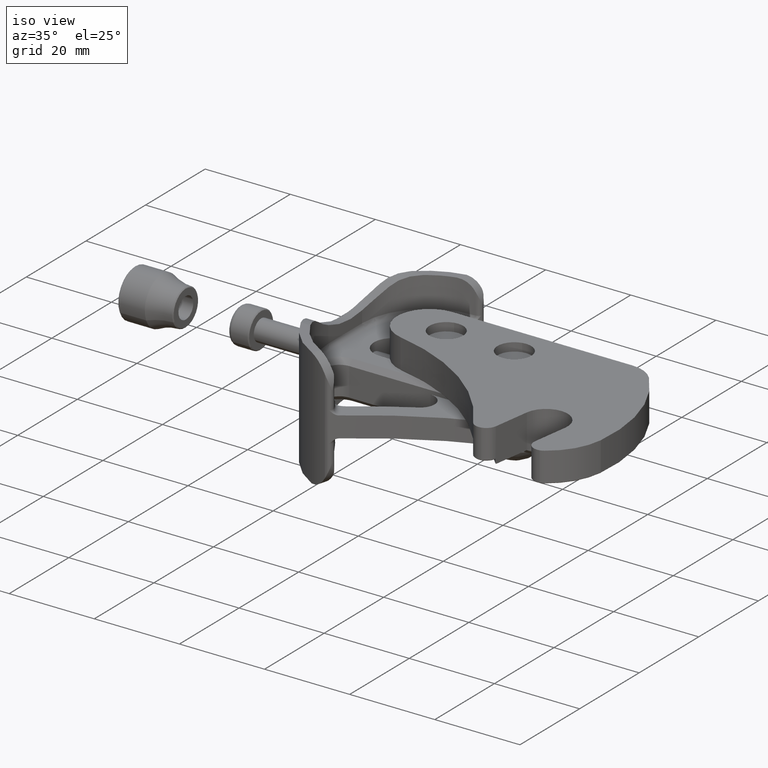
[diagram: clean part render]
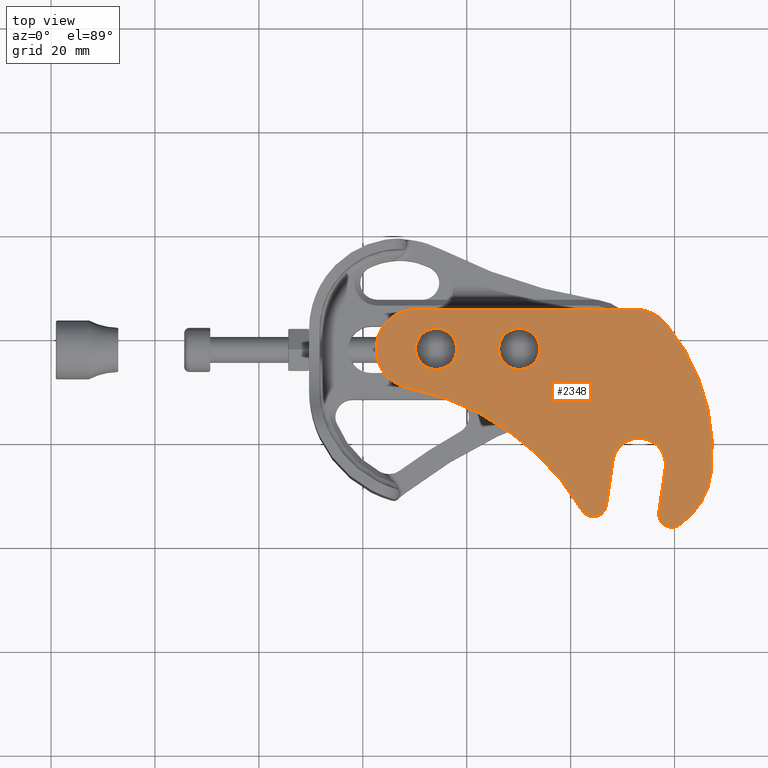
[diagram: tour spotlight — one face highlighted and labeled with its STEP entity id]
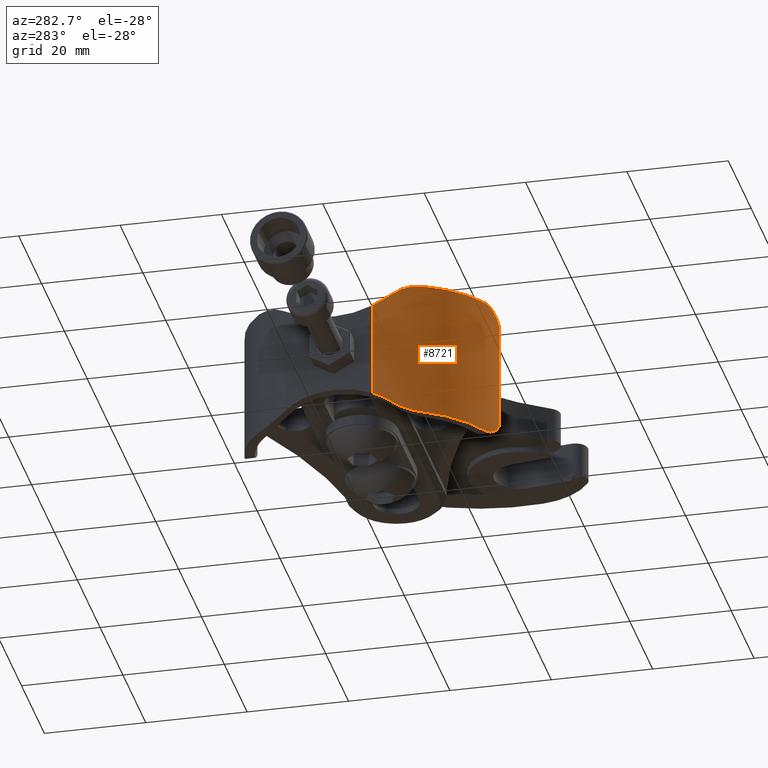
[diagram: tour spotlight — one face highlighted and labeled with its STEP entity id]
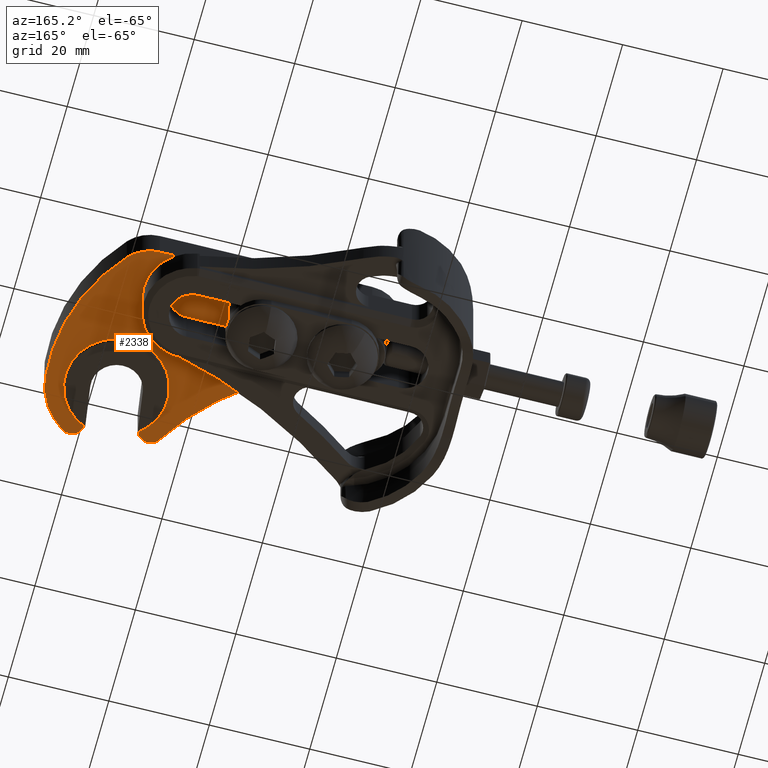
[diagram: tour spotlight — one face highlighted and labeled with its STEP entity id]
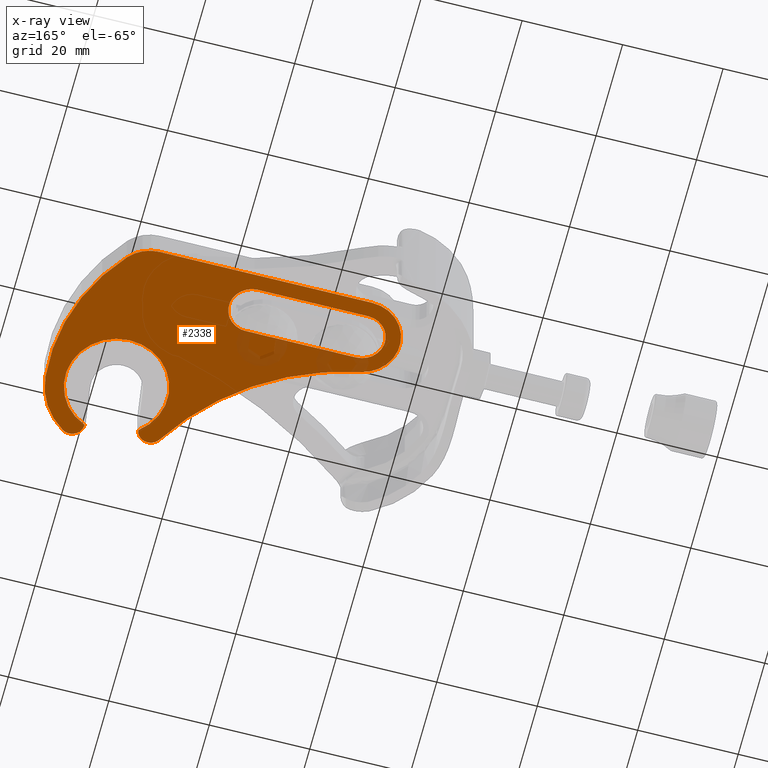
[diagram: x-ray of the same camera — body ghosted, this tour face saturated]
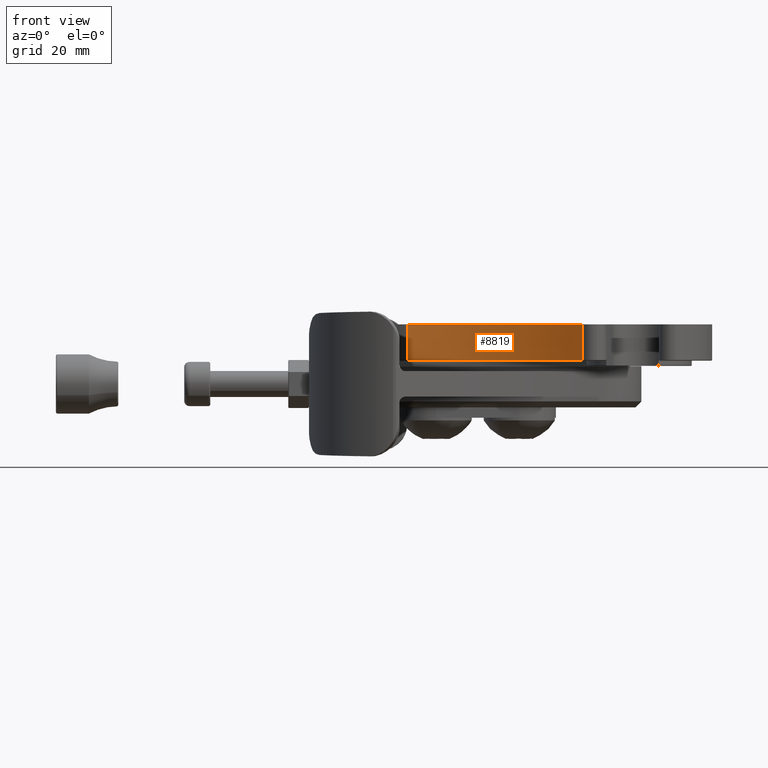
[diagram: tour spotlight — one face highlighted and labeled with its STEP entity id]
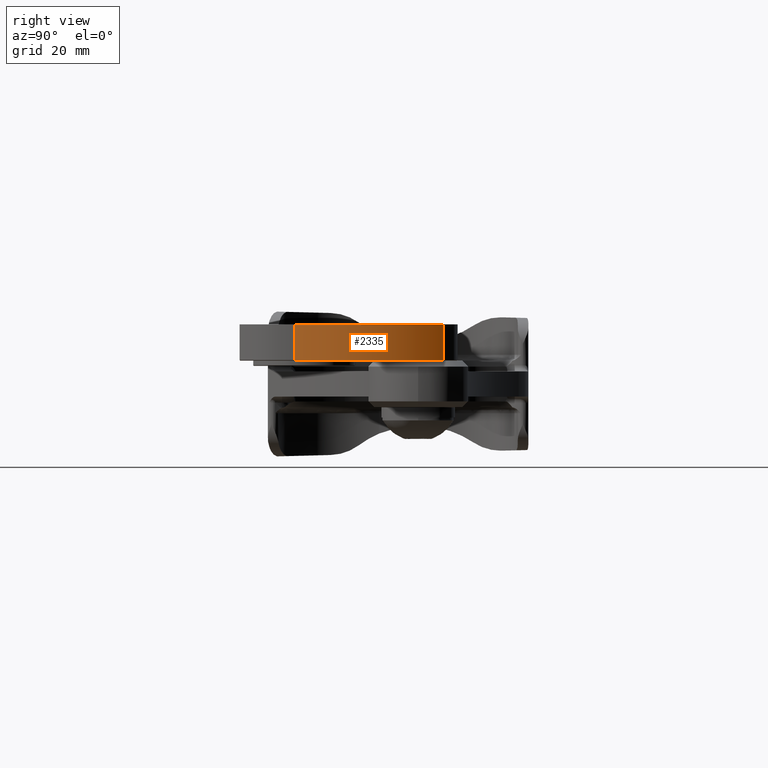
[diagram: tour spotlight — one face highlighted and labeled with its STEP entity id]
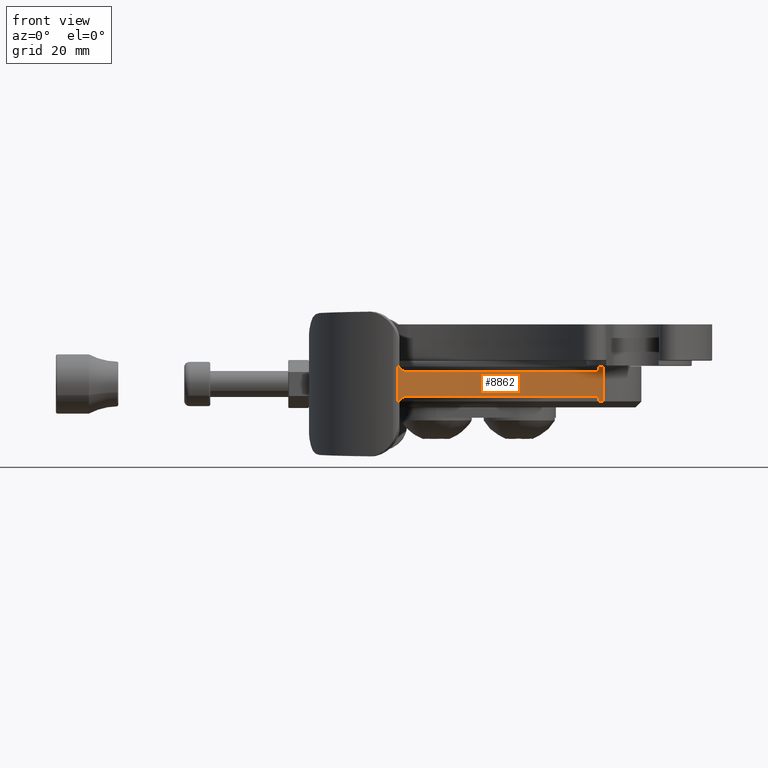
[diagram: tour spotlight — one face highlighted and labeled with its STEP entity id]
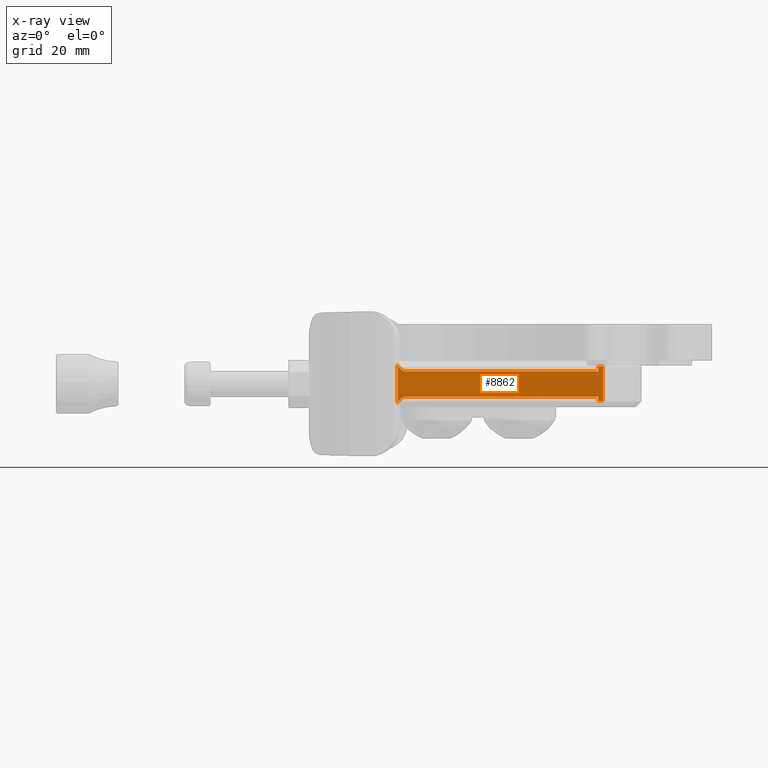
[diagram: x-ray of the same camera — body ghosted, this tour face saturated]
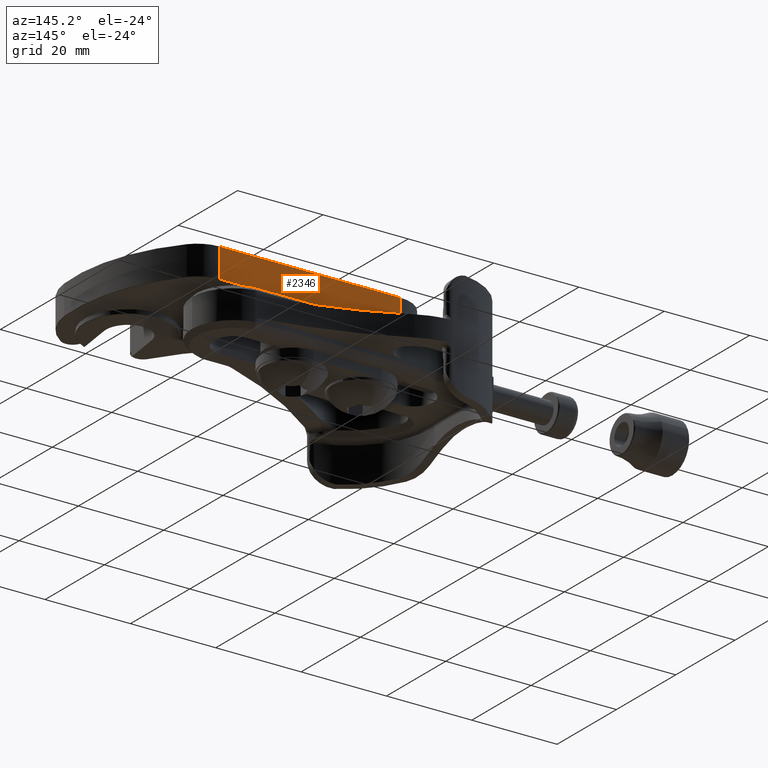
[diagram: tour spotlight — one face highlighted and labeled with its STEP entity id]
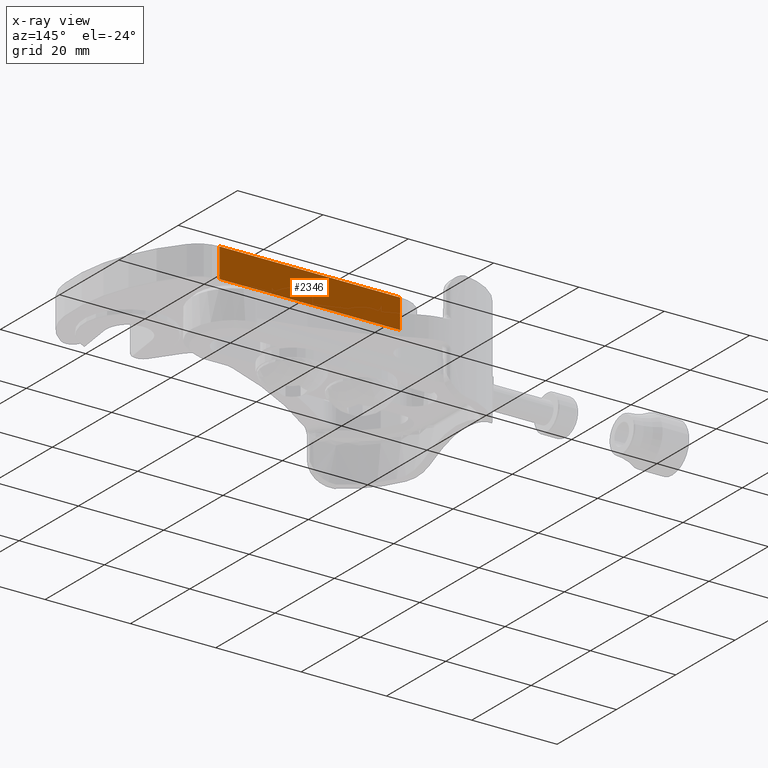
[diagram: x-ray of the same camera — body ghosted, this tour face saturated]
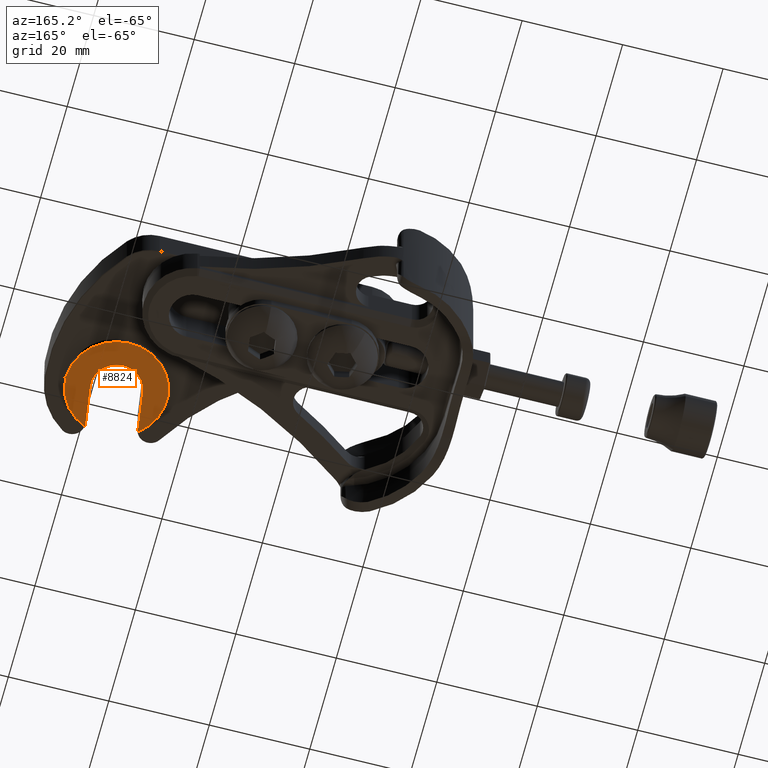
[diagram: tour spotlight — one face highlighted and labeled with its STEP entity id]
A machine part: a face-by-face anatomy tour. The part has 272 B-rep faces; the first image is the clean iso view, then the 8 largest visible faces are spotlighted one at a time (largest first), each with its STEP entity span.

Face 1 — top view, entity #2348. In plain terms, the highlighted planar face has unit normal (0, 0, -1).
Definition (entity closure, byte-faithful):
#176 = DIRECTION ( 'NONE',  ( 0.0000000000000000000, 0.0000000000000000000, 1.000000000000000000 ) ) ;
#178 = CARTESIAN_POINT ( 'NONE',  ( 5.853126836953999900, -2.108239229320000500, 0.0000000000000000000 ) ) ;
#180 = PLANE ( 'NONE',  #7413 ) ;
#181 = DIRECTION ( 'NONE',  ( 1.000000000000000000, 0.0000000000000000000, -0.0000000000000000000 ) ) ;
#260 = ORIENTED_EDGE ( 'NONE', *, *, #2813, .T. ) ;
#262 = ORIENTED_EDGE ( 'NONE', *, *, #2785, .T. ) ;
#265 = ORIENTED_EDGE ( 'NONE', *, *, #2821, .F. ) ;
#266 = ORIENTED_EDGE ( 'NONE', *, *, #2784, .F. ) ;
#268 = ORIENTED_EDGE ( 'NONE', *, *, #2839, .F. ) ;
#281 = ORIENTED_EDGE ( 'NONE', *, *, #2820, .F. ) ;
#500 = EDGE_LOOP ( 'NONE', ( #1183, #1180 ) ) ;
#501 = EDGE_LOOP ( 'NONE', ( #260, #262 ) ) ;
#1180 = ORIENTED_EDGE ( 'NONE', *, *, #2775, .T. ) ;
#1183 = ORIENTED_EDGE ( 'NONE', *, *, #2788, .T. ) ;
#1185 = ORIENTED_EDGE ( 'NONE', *, *, #2798, .F. ) ;
#1191 = ORIENTED_EDGE ( 'NONE', *, *, #2771, .F. ) ;
#1192 = ORIENTED_EDGE ( 'NONE', *, *, #2766, .F. ) ;
#1194 = ORIENTED_EDGE ( 'NONE', *, *, #2773, .F. ) ;
#1197 = ORIENTED_EDGE ( 'NONE', *, *, #2768, .F. ) ;
#1198 = ORIENTED_EDGE ( 'NONE', *, *, #2769, .F. ) ;
#1199 = ORIENTED_EDGE ( 'NONE', *, *, #2841, .F. ) ;
#1200 = ORIENTED_EDGE ( 'NONE', *, *, #2772, .F. ) ;
#1203 = ORIENTED_EDGE ( 'NONE', *, *, #2849, .F. ) ;
#1683 = EDGE_LOOP ( 'NONE', ( #281, #265, #266, #268, #1185, #1203, #1194, #1197, #1198, #1199, #1200, #1192, #1191 ) ) ;
#2348 = ADVANCED_FACE ( 'NONE', ( #8904, #8907, #8915 ), #180, .F. ) ;
#2625 = VERTEX_POINT ( 'NONE', #9363 ) ;
#2628 = VERTEX_POINT ( 'NONE', #9366 ) ;
#2629 = VERTEX_POINT ( 'NONE', #9367 ) ;
#2630 = VERTEX_POINT ( 'NONE', #9368 ) ;
#2631 = VERTEX_POINT ( 'NONE', #9369 ) ;
#2634 = VERTEX_POINT ( 'NONE', #9372 ) ;
#2635 = VERTEX_POINT ( 'NONE', #9373 ) ;
#2636 = VERTEX_POINT ( 'NONE', #9374 ) ;
#2637 = VERTEX_POINT ( 'NONE', #9375 ) ;
#2638 = VERTEX_POINT ( 'NONE', #9376 ) ;
#2639 = VERTEX_POINT ( 'NONE', #9377 ) ;
#2640 = VERTEX_POINT ( 'NONE', #9378 ) ;
#2642 = VERTEX_POINT ( 'NONE', #9380 ) ;
#2643 = VERTEX_POINT ( 'NONE', #9381 ) ;
#2644 = VERTEX_POINT ( 'NONE', #9382 ) ;
#2645 = VERTEX_POINT ( 'NONE', #9383 ) ;
#2649 = VERTEX_POINT ( 'NONE', #9387 ) ;
#2766 = EDGE_CURVE ( 'NONE', #2649, #2645, #9041, .T. ) ;
#2768 = EDGE_CURVE ( 'NONE', #2644, #2639, #9038, .T. ) ;
#2769 = EDGE_CURVE ( 'NONE', #2636, #2644, #9045, .T. ) ;
#2771 = EDGE_CURVE ( 'NONE', #2637, #2649, #9047, .T. ) ;
#2772 = EDGE_CURVE ( 'NONE', #2645, #2634, #9048, .T. ) ;
#2773 = EDGE_CURVE ( 'NONE', #2639, #2625, #9049, .T. ) ;
#2775 = EDGE_CURVE ( 'NONE', #2628, #2629, #9052, .T. ) ;
#2784 = EDGE_CURVE ( 'NONE', #2640, #2635, #9062, .T. ) ;
#2785 = EDGE_CURVE ( 'NONE', #2630, #2631, #9063, .T. ) ;
#2788 = EDGE_CURVE ( 'NONE', #2629, #2628, #9065, .T. ) ;
#2798 = EDGE_CURVE ( 'NONE', #2642, #2643, #9079, .T. ) ;
#2813 = EDGE_CURVE ( 'NONE', #2631, #2630, #9098, .T. ) ;
#2820 = EDGE_CURVE ( 'NONE', #2638, #2637, #9108, .T. ) ;
#2821 = EDGE_CURVE ( 'NONE', #2635, #2638, #9113, .T. ) ;
#2839 = EDGE_CURVE ( 'NONE', #2643, #2640, #9141, .T. ) ;
#2841 = EDGE_CURVE ( 'NONE', #2634, #2636, #9143, .T. ) ;
#2849 = EDGE_CURVE ( 'NONE', #2625, #2642, #9155, .T. ) ;
#4063 = CARTESIAN_POINT ( 'NONE',  ( 4.374338654618999700, -0.9621064012339999300, 0.0000000000000000000 ) ) ;
#4064 = DIRECTION ( 'NONE',  ( -0.9326616729269935300, -0.3607522749103898000, -0.0000000000000000000 ) ) ;
#4074 = CARTESIAN_POINT ( 'NONE',  ( 5.853126836953999900, -2.108239229320000500, 0.0000000000000000000 ) ) ;
#4075 = DIRECTION ( 'NONE',  ( 0.0000000000000000000, 0.0000000000000000000, 1.000000000000000000 ) ) ;
#4076 = DIRECTION ( 'NONE',  ( 1.000000000000000000, 0.0000000000000000000, 0.0000000000000000000 ) ) ;
#4077 = CARTESIAN_POINT ( 'NONE',  ( 3.754984335640991800, -3.050469585540007700, 0.0000000000000000000 ) ) ;
#4078 = DIRECTION ( 'NONE',  ( -0.0000000000000000000, -0.0000000000000000000, -1.000000000000000000 ) ) ;
#4079 = DIRECTION ( 'NONE',  ( 1.000000000000000000, 0.0000000000000000000, 0.0000000000000000000 ) ) ;
#4083 = CARTESIAN_POINT ( 'NONE',  ( 5.775096144362187500, -0.4172433064944154900, 0.0000000000000000000 ) ) ;
#4084 = DIRECTION ( 'NONE',  ( -0.2223993914988268400, 0.9749556454839118900, -0.0000000000000000000 ) ) ;
#4085 = CARTESIAN_POINT ( 'NONE',  ( 4.621306205145999400, -0.6521396501029995700, 0.0000000000000000000 ) ) ;
#4086 = DIRECTION ( 'NONE',  ( -0.0000000000000000000, -0.0000000000000000000, -1.000000000000000000 ) ) ;
#4087 = DIRECTION ( 'NONE',  ( 1.000000000000000000, 0.0000000000000000000, 0.0000000000000000000 ) ) ;
#4088 = CARTESIAN_POINT ( 'NONE',  ( 4.410413882921999700, -1.055372568212000100, 0.0000000000000000000 ) ) ;
#4089 = DIRECTION ( 'NONE',  ( 0.0000000000000000000, 0.0000000000000000000, 1.000000000000000000 ) ) ;
#4090 = DIRECTION ( 'NONE',  ( 1.000000000000000000, 0.0000000000000000000, 0.0000000000000000000 ) ) ;
#4095 = CARTESIAN_POINT ( 'NONE',  ( 5.818432531880000100, -1.956146148624999600, 0.0000000000000000000 ) ) ;
#4096 = DIRECTION ( 'NONE',  ( 0.0000000000000000000, 0.0000000000000000000, 1.000000000000000000 ) ) ;
#4097 = DIRECTION ( 'NONE',  ( 1.000000000000000000, 0.0000000000000000000, 0.0000000000000000000 ) ) ;
#4122 = CARTESIAN_POINT ( 'NONE',  ( 4.200256271273000100, -0.4933411491220000000, 0.0000000000000000000 ) ) ;
#4123 = DIRECTION ( 'NONE',  ( 0.0000000000000000000, 0.0000000000000000000, 1.000000000000000000 ) ) ;
#4124 = DIRECTION ( 'NONE',  ( 1.000000000000000000, 0.0000000000000000000, 0.0000000000000000000 ) ) ;
#4125 = CARTESIAN_POINT ( 'NONE',  ( 5.678320915236000100, -1.341924091970000600, 0.0000000000000000000 ) ) ;
#4126 = DIRECTION ( 'NONE',  ( 0.0000000000000000000, 0.0000000000000000000, 1.000000000000000000 ) ) ;
#4127 = DIRECTION ( 'NONE',  ( 1.000000000000000000, 0.0000000000000000000, 0.0000000000000000000 ) ) ;
#4134 = CARTESIAN_POINT ( 'NONE',  ( 5.818432531880000100, -1.956146148624999600, 0.0000000000000000000 ) ) ;
#4135 = DIRECTION ( 'NONE',  ( 0.0000000000000000000, 0.0000000000000000000, 1.000000000000000000 ) ) ;
#4136 = DIRECTION ( 'NONE',  ( 1.000000000000000000, 0.0000000000000000000, 0.0000000000000000000 ) ) ;
#4159 = CARTESIAN_POINT ( 'NONE',  ( 4.931666700680999300, -1.550012881780005000, 0.0000000000000000000 ) ) ;
#4160 = DIRECTION ( 'NONE',  ( 0.0000000000000000000, 0.0000000000000000000, 1.000000000000000000 ) ) ;
#4161 = DIRECTION ( 'NONE',  ( 1.000000000000000000, 0.0000000000000000000, 0.0000000000000000000 ) ) ;
#4198 = CARTESIAN_POINT ( 'NONE',  ( 5.678320915236000100, -1.341924091970000600, 0.0000000000000000000 ) ) ;
#4199 = DIRECTION ( 'NONE',  ( 0.0000000000000000000, 0.0000000000000000000, 1.000000000000000000 ) ) ;
#4200 = DIRECTION ( 'NONE',  ( 1.000000000000000000, 0.0000000000000000000, 0.0000000000000000000 ) ) ;
#4204 = CARTESIAN_POINT ( 'NONE',  ( 4.549155748539999600, -0.4656073161459999300, 0.0000000000000000000 ) ) ;
#4214 = DIRECTION ( 'NONE',  ( 0.9326616697853414900, 0.3607522830325797800, -0.0000000000000000000 ) ) ;
#4217 = CARTESIAN_POINT ( 'NONE',  ( 4.200256271273000100, -0.4933411491220000000, 0.0000000000000000000 ) ) ;
#4218 = DIRECTION ( 'NONE',  ( 0.0000000000000000000, 0.0000000000000000000, 1.000000000000000000 ) ) ;
#4219 = DIRECTION ( 'NONE',  ( 1.000000000000000000, 0.0000000000000000000, 0.0000000000000000000 ) ) ;
#4263 = CARTESIAN_POINT ( 'NONE',  ( 4.621306205145999400, -0.6521396501029995700, 0.0000000000000000000 ) ) ;
#4264 = DIRECTION ( 'NONE',  ( 0.0000000000000000000, 0.0000000000000000000, 1.000000000000000000 ) ) ;
#4265 = DIRECTION ( 'NONE',  ( 1.000000000000000000, 0.0000000000000000000, 0.0000000000000000000 ) ) ;
#4268 = CARTESIAN_POINT ( 'NONE',  ( 4.410413882921999700, -1.055372568212000100, 0.0000000000000000000 ) ) ;
#4269 = DIRECTION ( 'NONE',  ( 0.0000000000000000000, 0.0000000000000000000, 1.000000000000000000 ) ) ;
#4270 = DIRECTION ( 'NONE',  ( 1.000000000000000000, 0.0000000000000000000, 0.0000000000000000000 ) ) ;
#4289 = CARTESIAN_POINT ( 'NONE',  ( 5.482609450716990900, -0.4839631239440065300, 0.0000000000000000000 ) ) ;
#4290 = DIRECTION ( 'NONE',  ( 0.0000000000000000000, 0.0000000000000000000, 1.000000000000000000 ) ) ;
#4291 = DIRECTION ( 'NONE',  ( 1.000000000000000000, 0.0000000000000000000, 0.0000000000000000000 ) ) ;
#7413 = AXIS2_PLACEMENT_3D ( 'NONE', #178, #176, #181 ) ;
#7482 = AXIS2_PLACEMENT_3D ( 'NONE', #4074, #4075, #4076 ) ;
#7483 = AXIS2_PLACEMENT_3D ( 'NONE', #4077, #4078, #4079 ) ;
#7485 = AXIS2_PLACEMENT_3D ( 'NONE', #4085, #4086, #4087 ) ;
#7486 = AXIS2_PLACEMENT_3D ( 'NONE', #4088, #4089, #4090 ) ;
#7488 = AXIS2_PLACEMENT_3D ( 'NONE', #4095, #4096, #4097 ) ;
#7494 = AXIS2_PLACEMENT_3D ( 'NONE', #4122, #4123, #4124 ) ;
#7495 = AXIS2_PLACEMENT_3D ( 'NONE', #4125, #4126, #4127 ) ;
#7497 = AXIS2_PLACEMENT_3D ( 'NONE', #4134, #4135, #4136 ) ;
#7502 = AXIS2_PLACEMENT_3D ( 'NONE', #4159, #4160, #4161 ) ;
#7510 = AXIS2_PLACEMENT_3D ( 'NONE', #4198, #4199, #4200 ) ;
#7512 = AXIS2_PLACEMENT_3D ( 'NONE', #4217, #4218, #4219 ) ;
#7523 = AXIS2_PLACEMENT_3D ( 'NONE', #4263, #4264, #4265 ) ;
#7524 = AXIS2_PLACEMENT_3D ( 'NONE', #4268, #4269, #4270 ) ;
#7529 = AXIS2_PLACEMENT_3D ( 'NONE', #4289, #4290, #4291 ) ;
#8904 = FACE_BOUND ( 'NONE', #501, .T. ) ;
#8907 = FACE_OUTER_BOUND ( 'NONE', #1683, .T. ) ;
#8915 = FACE_BOUND ( 'NONE', #500, .T. ) ;
#9038 = CIRCLE ( 'NONE', #7482, 0.3000000000000006000 ) ;
#9041 = LINE ( 'NONE', #4063, #9043 ) ;
#9043 = VECTOR ( 'NONE', #4064, 39.37007874015748900 ) ;
#9045 = CIRCLE ( 'NONE', #7483, 1.999999999999847000 ) ;
#9047 = CIRCLE ( 'NONE', #7485, 0.2000000014898751000 ) ;
#9048 = CIRCLE ( 'NONE', #7486, 0.09999999999970443600 ) ;
#9049 = LINE ( 'NONE', #4083, #9051 ) ;
#9051 = VECTOR ( 'NONE', #4084, 39.37007874015748100 ) ;
#9052 = CIRCLE ( 'NONE', #7488, 0.1560000000000001900 ) ;
#9062 = CIRCLE ( 'NONE', #7494, 0.1000000000003497000 ) ;
#9063 = CIRCLE ( 'NONE', #7495, 0.1560000000000001900 ) ;
#9065 = CIRCLE ( 'NONE', #7497, 0.1560000000000001900 ) ;
#9079 = CIRCLE ( 'NONE', #7502, 1.500000000000197600 ) ;
#9098 = CIRCLE ( 'NONE', #7510, 0.1560000000000001900 ) ;
#9108 = LINE ( 'NONE', #4204, #9116 ) ;
#9113 = CIRCLE ( 'NONE', #7512, 0.1000000000003497000 ) ;
#9116 = VECTOR ( 'NONE', #4214, 39.37007874015748900 ) ;
#9141 = CIRCLE ( 'NONE', #7523, 0.5500000119209993400 ) ;
#9143 = CIRCLE ( 'NONE', #7524, 0.09999999999970443600 ) ;
#9155 = CIRCLE ( 'NONE', #7529, 0.3000000000001295500 ) ;
#9363 = CARTESIAN_POINT ( 'NONE',  ( 5.775096144362304800, -0.4172433064943889000, 0.0000000000000000000 ) ) ;
#9366 = CARTESIAN_POINT ( 'NONE',  ( 5.974432531879999800, -1.956146148624999600, 0.0000000000000000000 ) ) ;
#9367 = CARTESIAN_POINT ( 'NONE',  ( 5.662432531879999500, -1.956146148624999600, 0.0000000000000000000 ) ) ;
#9368 = CARTESIAN_POINT ( 'NONE',  ( 5.834320915236000700, -1.341924091970000600, 0.0000000000000000000 ) ) ;
#9369 = CARTESIAN_POINT ( 'NONE',  ( 5.522320915236000400, -1.341924091970000600, 0.0000000000000000000 ) ) ;
#9372 = CARTESIAN_POINT ( 'NONE',  ( 4.310413882922294900, -1.055372568212000100, 0.0000000000000000000 ) ) ;
#9373 = CARTESIAN_POINT ( 'NONE',  ( 4.100256271272650500, -0.4933411491220000000, 0.0000000000000000000 ) ) ;
#9374 = CARTESIAN_POINT ( 'NONE',  ( 4.379202952099031000, -1.150377188084925600, 0.0000000000000000000 ) ) ;
#9375 = CARTESIAN_POINT ( 'NONE',  ( 4.549155748002433200, -0.4656073147562168600, 0.0000000000000000000 ) ) ;
#9376 = CARTESIAN_POINT ( 'NONE',  ( 4.236331499576070100, -0.5866073161006065700, 0.0000000000000000000 ) ) ;
#9377 = CARTESIAN_POINT ( 'NONE',  ( 6.145613530599188600, -2.041519411870415200, 0.0000000000000000000 ) ) ;
#9378 = CARTESIAN_POINT ( 'NONE',  ( 4.106689621779725700, -0.4580525942823264800, 0.0000000000000000000 ) ) ;
#9380 = CARTESIAN_POINT ( 'NONE',  ( 5.620345138226624300, -0.2174506844847689000, 0.0000000000000000000 ) ) ;
#9381 = CARTESIAN_POINT ( 'NONE',  ( 4.441623806845203900, -0.1323182876581942000, 0.0000000000000000000 ) ) ;
#9382 = CARTESIAN_POINT ( 'NONE',  ( 5.579456075913273400, -2.231138841000769100, 0.0000000000000000000 ) ) ;
#9383 = CARTESIAN_POINT ( 'NONE',  ( 4.374338654618893200, -0.9621064012337241500, 0.0000000000000000000 ) ) ;
#9387 = CARTESIAN_POINT ( 'NONE',  ( 4.693456826381020800, -0.8386719235770575500, 0.0000000000000000000 ) ) ;

Face 2 — auxiliary view, entity #8721. In plain terms, the highlighted cylindrical surface (partial cylindrical patch) has radius 22.225 mm, axis along (0, 0, 1).
Definition (entity closure, byte-faithful):
#441 = VERTEX_POINT ( 'NONE', #7768 ) ;
#443 = VERTEX_POINT ( 'NONE', #7770 ) ;
#447 = VERTEX_POINT ( 'NONE', #7774 ) ;
#448 = VERTEX_POINT ( 'NONE', #7775 ) ;
#449 = VERTEX_POINT ( 'NONE', #7776 ) ;
#450 = VERTEX_POINT ( 'NONE', #7777 ) ;
#451 = VERTEX_POINT ( 'NONE', #7778 ) ;
#740 = EDGE_CURVE ( 'NONE', #7094, #7110, #3357, .T. ) ;
#1352 = ORIENTED_EDGE ( 'NONE', *, *, #2717, .T. ) ;
#1353 = ORIENTED_EDGE ( 'NONE', *, *, #740, .T. ) ;
#1354 = ORIENTED_EDGE ( 'NONE', *, *, #7204, .T. ) ;
#1355 = ORIENTED_EDGE ( 'NONE', *, *, #7206, .T. ) ;
#1356 = ORIENTED_EDGE ( 'NONE', *, *, #7208, .T. ) ;
#1357 = ORIENTED_EDGE ( 'NONE', *, *, #7212, .T. ) ;
#1358 = ORIENTED_EDGE ( 'NONE', *, *, #7214, .T. ) ;
#1359 = ORIENTED_EDGE ( 'NONE', *, *, #7216, .T. ) ;
#1360 = ORIENTED_EDGE ( 'NONE', *, *, #7218, .T. ) ;
#1361 = ORIENTED_EDGE ( 'NONE', *, *, #7219, .T. ) ;
#1720 = EDGE_LOOP ( 'NONE', ( #1352, #1353, #1354, #1355, #1356, #1357, #1358, #1359, #1360, #1361 ) ) ;
#2717 = EDGE_CURVE ( 'NONE', #7077, #7094, #9761, .T. ) ;
#3357 = LINE ( 'NONE', #3617, #3360 ) ;
#3360 = VECTOR ( 'NONE', #3629, 39.37007874015748100 ) ;
#3617 = CARTESIAN_POINT ( 'NONE',  ( 0.6362537155065966000, -1.136798795224010000, 0.0000000000000000000 ) ) ;
#3629 = DIRECTION ( 'NONE',  ( 0.0000000000000000000, 0.0000000000000000000, 1.000000000000000000 ) ) ;
#3778 = CARTESIAN_POINT ( 'NONE',  ( 0.4836417697269921900, -1.077819336675210500, -0.5461584874640393900 ) ) ;
#3779 = CARTESIAN_POINT ( 'NONE',  ( 0.4997774130690241800, -1.085655106312276400, -0.5420961621713238400 ) ) ;
#3780 = CARTESIAN_POINT ( 'NONE',  ( 0.5314926688444822100, -1.099941116059593800, -0.5301199470442647900 ) ) ;
#3781 = CARTESIAN_POINT ( 'NONE',  ( 0.5472031957770057100, -1.106430169517023800, -0.5220773072865931800 ) ) ;
#3782 = CARTESIAN_POINT ( 'NONE',  ( 0.5764141098669296500, -1.117627577385220000, -0.5027370647717408500 ) ) ;
#3783 = CARTESIAN_POINT ( 'NONE',  ( 0.5901081676573308700, -1.122428668753243700, -0.4913947090185475900 ) ) ;
#3784 = CARTESIAN_POINT ( 'NONE',  ( 0.6153639551700853500, -1.130697721808195100, -0.4653126870163127300 ) ) ;
#3785 = CARTESIAN_POINT ( 'NONE',  ( 0.6265558373295114800, -1.134048337043996000, -0.4509615653565766100 ) ) ;
#3786 = CARTESIAN_POINT ( 'NONE',  ( 0.6362537155065437500, -1.136798795223994400, -0.4352989336938433200 ) ) ;
#4321 = CARTESIAN_POINT ( 'NONE',  ( 0.4672699629152922100, -1.069197143406813000, -0.5482880333341457700 ) ) ;
#4337 = CARTESIAN_POINT ( 'NONE',  ( 0.6362537155065437500, -1.136798795223994400, -0.4352989336938433200 ) ) ;
#4351 = CARTESIAN_POINT ( 'NONE',  ( 0.6362537155064906800, -1.136798795223979500, 0.4352989336939289100 ) ) ;
#4618 = LINE ( 'NONE', #5184, #4621 ) ;
#4621 = VECTOR ( 'NONE', #5196, 39.37007874015748100 ) ;
#4656 = FACE_OUTER_BOUND ( 'NONE', #1720, .T. ) ;
#4660 = CYLINDRICAL_SURFACE ( 'NONE', #4827, 0.8750000000000000000 ) ;
#4827 = AXIS2_PLACEMENT_3D ( 'NONE', #5358, #5359, #5357 ) ;
#5162 = CARTESIAN_POINT ( 'NONE',  ( 0.6265559049711518800, -1.134048356228141200, 0.4509614561114320100 ) ) ;
#5163 = CARTESIAN_POINT ( 'NONE',  ( 0.6362537155064906800, -1.136798795223979500, 0.4352989336939289100 ) ) ;
#5166 = CARTESIAN_POINT ( 'NONE',  ( 0.2959556401434280100, -0.9789746519239257400, 0.5460010609659816700 ) ) ;
#5167 = CARTESIAN_POINT ( 'NONE',  ( 0.4672699629152288200, -1.069197143406937400, 0.5482880333341625400 ) ) ;
#5168 = CARTESIAN_POINT ( 'NONE',  ( 0.6154228124122828000, -1.130713204164823600, 0.4652182037609174400 ) ) ;
#5169 = CARTESIAN_POINT ( 'NONE',  ( 0.5905019301911225100, -1.122561311448528000, 0.4910211590096512600 ) ) ;
#5170 = CARTESIAN_POINT ( 'NONE',  ( 0.5765451780407718800, -1.117675006351230200, 0.5026358817634593000 ) ) ;
#5171 = CARTESIAN_POINT ( 'NONE',  ( 0.5473454112721689600, -1.106487472060602400, 0.5219974178632326200 ) ) ;
#5172 = CARTESIAN_POINT ( 'NONE',  ( 0.5319971516720974900, -1.100160829047678800, 0.5299022257616129400 ) ) ;
#5173 = CARTESIAN_POINT ( 'NONE',  ( 0.4998892827144149600, -1.085712883650755500, 0.5420806209151624000 ) ) ;
#5174 = CARTESIAN_POINT ( 'NONE',  ( 0.4836444160728029500, -1.077820730370194500, 0.5461581432433400000 ) ) ;
#5175 = CARTESIAN_POINT ( 'NONE',  ( 0.4672699629152288200, -1.069197143406937400, 0.5482880333341625400 ) ) ;
#5178 = CARTESIAN_POINT ( 'NONE',  ( 0.06408284275054489100, -0.6261835319740546300, 0.5370584621770677600 ) ) ;
#5179 = CARTESIAN_POINT ( 'NONE',  ( 0.08113501776582438000, -0.6629719961930964400, 0.5379909813278214200 ) ) ;
#5180 = CARTESIAN_POINT ( 'NONE',  ( 0.1625598510447015500, -0.8386384178042559600, 0.5424437984207797200 ) ) ;
#5181 = CARTESIAN_POINT ( 'NONE',  ( 0.08113501776582438000, -0.6629719961930964400, 0.5379909813278214200 ) ) ;
#5184 = CARTESIAN_POINT ( 'NONE',  ( 0.0000000000000000000, -0.2949999962580001600, 0.0000000000000000000 ) ) ;
#5185 = CARTESIAN_POINT ( 'NONE',  ( 0.05004735475278866700, -0.5892189618499704700, 0.5308161689158823500 ) ) ;
#5186 = CARTESIAN_POINT ( 'NONE',  ( 0.03303583849632486100, -0.5339414506663187100, 0.5121270359494398700 ) ) ;
#5187 = CARTESIAN_POINT ( 'NONE',  ( 0.02816185138242038500, -0.5159271732766191900, 0.5044352057838181700 ) ) ;
#5188 = CARTESIAN_POINT ( 'NONE',  ( 0.01985580293500232400, -0.4812043717857009700, 0.4862595769929298800 ) ) ;
#5189 = CARTESIAN_POINT ( 'NONE',  ( 0.01640422058084178800, -0.4644288127538570000, 0.4757548688015808000 ) ) ;
#5190 = CARTESIAN_POINT ( 'NONE',  ( 0.01353665042812749100, -0.4483163309775243800, 0.4637409315620671900 ) ) ;
#5191 = CARTESIAN_POINT ( 'NONE',  ( 0.01353665042812749100, -0.4483163309775243800, 0.4637409315620671900 ) ) ;
#5192 = CARTESIAN_POINT ( 'NONE',  ( 0.005106483047052093300, -0.4009483814365370500, 0.4284220042329301400 ) ) ;
#5196 = DIRECTION ( 'NONE',  ( -0.0000000000000000000, -0.0000000000000000000, -1.000000000000000000 ) ) ;
#5197 = CARTESIAN_POINT ( 'NONE',  ( -2.348729135988354000E-010, -0.3499205709638362200, 0.3989490081135673700 ) ) ;
#5198 = CARTESIAN_POINT ( 'NONE',  ( 4.685638989388499900E-010, -0.2949999962579905600, 0.3754530456830474400 ) ) ;
#5199 = CARTESIAN_POINT ( 'NONE',  ( 4.685639256358449400E-010, -0.2949999962579907300, -0.3754530456830474900 ) ) ;
#5200 = CARTESIAN_POINT ( 'NONE',  ( -2.348728825108855500E-010, -0.3499205709638366600, -0.3989490081135675900 ) ) ;
#5206 = CARTESIAN_POINT ( 'NONE',  ( 0.01927182401243423400, -0.4805414815196223400, -0.4877689454658900600 ) ) ;
#5207 = CARTESIAN_POINT ( 'NONE',  ( 0.01353665042812844000, -0.4483163309775296500, -0.4637409315620603700 ) ) ;
#5208 = CARTESIAN_POINT ( 'NONE',  ( 0.005106483047052095900, -0.4009483814365367200, -0.4284220042329299800 ) ) ;
#5209 = CARTESIAN_POINT ( 'NONE',  ( 0.01353665042812844000, -0.4483163309775296500, -0.4637409315620603700 ) ) ;
#5212 = CARTESIAN_POINT ( 'NONE',  ( 0.1625598510447013300, -0.8386384178042555200, -0.5424437984207797200 ) ) ;
#5213 = CARTESIAN_POINT ( 'NONE',  ( 0.08113501776582050800, -0.6629719961930981000, -0.5379909813278293000 ) ) ;
#5214 = CARTESIAN_POINT ( 'NONE',  ( 0.02731533464928426200, -0.5153302894742326500, -0.5058178057696766100 ) ) ;
#5215 = CARTESIAN_POINT ( 'NONE',  ( 0.05000789028397404500, -0.5891134938027404700, -0.5307973059699266900 ) ) ;
#5216 = CARTESIAN_POINT ( 'NONE',  ( 0.06408131491158997100, -0.6261802358051684600, -0.5370583786253165800 ) ) ;
#5217 = CARTESIAN_POINT ( 'NONE',  ( 0.08113501776582050800, -0.6629719961930981000, -0.5379909813278293000 ) ) ;
#5219 = CARTESIAN_POINT ( 'NONE',  ( 0.2959556401434273500, -0.9789746519239251900, -0.5460010609659817800 ) ) ;
#5220 = CARTESIAN_POINT ( 'NONE',  ( 0.4672699629152922100, -1.069197143406813000, -0.5482880333341457700 ) ) ;
#5357 = DIRECTION ( 'NONE',  ( 1.000000000000000000, 0.0000000000000000000, 0.0000000000000000000 ) ) ;
#5358 = CARTESIAN_POINT ( 'NONE',  ( 0.8750000000000000000, -0.2949999999999999800, 0.0000000000000000000 ) ) ;
#5359 = DIRECTION ( 'NONE',  ( 0.0000000000000000000, 0.0000000000000000000, 1.000000000000000000 ) ) ;
#7077 = VERTEX_POINT ( 'NONE', #4321 ) ;
#7094 = VERTEX_POINT ( 'NONE', #4337 ) ;
#7110 = VERTEX_POINT ( 'NONE', #4351 ) ;
#7204 = EDGE_CURVE ( 'NONE', #7110, #443, #9815, .T. ) ;
#7206 = EDGE_CURVE ( 'NONE', #443, #447, #9816, .T. ) ;
#7208 = EDGE_CURVE ( 'NONE', #447, #448, #9817, .T. ) ;
#7212 = EDGE_CURVE ( 'NONE', #448, #450, #9818, .T. ) ;
#7214 = EDGE_CURVE ( 'NONE', #450, #441, #4618, .T. ) ;
#7216 = EDGE_CURVE ( 'NONE', #441, #451, #9819, .T. ) ;
#7218 = EDGE_CURVE ( 'NONE', #451, #449, #9820, .T. ) ;
#7219 = EDGE_CURVE ( 'NONE', #449, #7077, #9821, .T. ) ;
#7768 = CARTESIAN_POINT ( 'NONE',  ( 4.685639256358449400E-010, -0.2949999962579907300, -0.3754530456830474900 ) ) ;
#7770 = CARTESIAN_POINT ( 'NONE',  ( 0.4672699629152288200, -1.069197143406937400, 0.5482880333341625400 ) ) ;
#7774 = CARTESIAN_POINT ( 'NONE',  ( 0.08113501776582438000, -0.6629719961930964400, 0.5379909813278214200 ) ) ;
#7775 = CARTESIAN_POINT ( 'NONE',  ( 0.01353665042812749100, -0.4483163309775243800, 0.4637409315620671900 ) ) ;
#7776 = CARTESIAN_POINT ( 'NONE',  ( 0.08113501776582050800, -0.6629719961930981000, -0.5379909813278293000 ) ) ;
#7777 = CARTESIAN_POINT ( 'NONE',  ( 4.685638989388499900E-010, -0.2949999962579905600, 0.3754530456830474400 ) ) ;
#7778 = CARTESIAN_POINT ( 'NONE',  ( 0.01353665042812844000, -0.4483163309775296500, -0.4637409315620603700 ) ) ;
#8721 = ADVANCED_FACE ( 'NONE', ( #4656 ), #4660, .T. ) ;
#9455 = CARTESIAN_POINT ( 'NONE',  ( 0.4672699629152922100, -1.069197143406813000, -0.5482880333341457700 ) ) ;
#9761 = B_SPLINE_CURVE_WITH_KNOTS ( 'NONE', 3,
 ( #9455, #3778, #3779, #3780, #3781, #3782, #3783, #3784, #3785, #3786 ),
 .UNSPECIFIED., .F., .F.,
 ( 4, 2, 2, 2, 4 ),
 ( 2.647769990789107100E-016, 0.001399333654534598800, 0.002798667309068933100, 0.004198000963603267000, 0.005597334618137600800 ),
 .UNSPECIFIED. ) ;
#9815 = B_SPLINE_CURVE_WITH_KNOTS ( 'NONE', 3,
 ( #5163, #5162, #5168, #5169, #5170, #5171, #5172, #5173, #5174, #5175 ),
 .UNSPECIFIED., .F., .F.,
 ( 4, 2, 2, 2, 4 ),
 ( 0.0000000000000000000, 0.001399437075598230700, 0.002798874151196461400, 0.004198311226794692100, 0.005597748302392922800 ),
 .UNSPECIFIED. ) ;
#9816 =( BOUNDED_CURVE ( )  B_SPLINE_CURVE ( 3, ( #5167, #5166, #5180, #5181 ),
 .UNSPECIFIED., .F., .T. ) 
 B_SPLINE_CURVE_WITH_KNOTS ( ( 4, 4 ),
 ( 0.4847387082146169000, 1.136756533847164100 ),
 .UNSPECIFIED. ) 
 CURVE ( )  GEOMETRIC_REPRESENTATION_ITEM ( )  RATIONAL_B_SPLINE_CURVE ( ( 1.000000000000000000, 0.9648853929559138000, 0.9648853929559138000, 1.000000000000000000 ) ) 
 REPRESENTATION_ITEM ( '' )  );
#9817 = B_SPLINE_CURVE_WITH_KNOTS ( 'NONE', 3,
 ( #5179, #5178, #5185, #5186, #5187, #5188, #5189, #5190 ),
 .UNSPECIFIED., .F., .F.,
 ( 4, 2, 2, 4 ),
 ( 8.284212780189022000E-017, 0.003049968602159497300, 0.004574952903239205000, 0.006099937204318912200 ),
 .UNSPECIFIED. ) ;
#9818 = B_SPLINE_CURVE_WITH_KNOTS ( 'NONE', 3,
 ( #5191, #5192, #5197, #5198 ),
 .UNSPECIFIED., .F., .F.,
 ( 4, 4 ),
 ( 6.273634481017143500E-018, 0.004506899886458427500 ),
 .UNSPECIFIED. ) ;
#9819 = B_SPLINE_CURVE_WITH_KNOTS ( 'NONE', 3,
 ( #5199, #5200, #5208, #5209 ),
 .UNSPECIFIED., .F., .F.,
 ( 4, 4 ),
 ( 9.082243204132036500E-013, 0.004506899887366672300 ),
 .UNSPECIFIED. ) ;
#9820 = B_SPLINE_CURVE_WITH_KNOTS ( 'NONE', 3,
 ( #5207, #5206, #5214, #5215, #5216, #5217 ),
 .UNSPECIFIED., .F., .F.,
 ( 4, 2, 4 ),
 ( 2.168404344971008900E-019, 0.003048536530694923900, 0.006097073061389847800 ),
 .UNSPECIFIED. ) ;
#9821 =( BOUNDED_CURVE ( )  B_SPLINE_CURVE ( 3, ( #5213, #5212, #5219, #5220 ),
 .UNSPECIFIED., .F., .F. ) 
 B_SPLINE_CURVE_WITH_KNOTS ( ( 4, 4 ),
 ( 2.004836119742629200, 2.656853945375174500 ),
 .UNSPECIFIED. ) 
 CURVE ( )  GEOMETRIC_REPRESENTATION_ITEM ( )  RATIONAL_B_SPLINE_CURVE ( ( 1.000000000000000000, 0.9648853929559139100, 0.9648853929559139100, 1.000000000000000000 ) ) 
 REPRESENTATION_ITEM ( '' )  );

Face 3 — auxiliary view, entity #2338. An x-ray twin of the same camera follows (body ghosted, this face saturated) — the face is partly hidden behind the body. In plain terms, the highlighted planar face has unit normal (0, 0, -1).
Definition (entity closure, byte-faithful):
#143 = DIRECTION ( 'NONE',  ( 0.0000000000000000000, 0.0000000000000000000, 1.000000000000000000 ) ) ;
#144 = CARTESIAN_POINT ( 'NONE',  ( 5.853126836953999900, -2.108239229320000500, 0.2750000000000000200 ) ) ;
#146 = PLANE ( 'NONE',  #7403 ) ;
#148 = DIRECTION ( 'NONE',  ( 1.000000000000000000, 0.0000000000000000000, -0.0000000000000000000 ) ) ;
#277 = ORIENTED_EDGE ( 'NONE', *, *, #2776, .T. ) ;
#284 = ORIENTED_EDGE ( 'NONE', *, *, #2778, .T. ) ;
#364 = ORIENTED_EDGE ( 'NONE', *, *, #621, .T. ) ;
#365 = ORIENTED_EDGE ( 'NONE', *, *, #622, .T. ) ;
#367 = ORIENTED_EDGE ( 'NONE', *, *, #748, .T. ) ;
#368 = ORIENTED_EDGE ( 'NONE', *, *, #625, .T. ) ;
#369 = ORIENTED_EDGE ( 'NONE', *, *, #2810, .T. ) ;
#370 = ORIENTED_EDGE ( 'NONE', *, *, #624, .T. ) ;
#371 = ORIENTED_EDGE ( 'NONE', *, *, #623, .T. ) ;
#374 = ORIENTED_EDGE ( 'NONE', *, *, #2823, .T. ) ;
#375 = ORIENTED_EDGE ( 'NONE', *, *, #2795, .T. ) ;
#621 = EDGE_CURVE ( 'NONE', #2658, #2659, #2981, .T. ) ;
#622 = EDGE_CURVE ( 'NONE', #2659, #2660, #2980, .T. ) ;
#623 = EDGE_CURVE ( 'NONE', #2660, #2647, #2982, .T. ) ;
#624 = EDGE_CURVE ( 'NONE', #2654, #2633, #2983, .T. ) ;
#625 = EDGE_CURVE ( 'NONE', #2632, #2646, #2977, .T. ) ;
#626 = EDGE_CURVE ( 'NONE', #2646, #2663, #2986, .T. ) ;
#627 = EDGE_CURVE ( 'NONE', #2663, #2654, #2987, .T. ) ;
#748 = EDGE_CURVE ( 'NONE', #2656, #2658, #3361, .T. ) ;
#1136 = EDGE_CURVE ( 'NONE', #2648, #2621, #3418, .T. ) ;
#1146 = ORIENTED_EDGE ( 'NONE', *, *, #2774, .T. ) ;
#1147 = ORIENTED_EDGE ( 'NONE', *, *, #2850, .T. ) ;
#1148 = ORIENTED_EDGE ( 'NONE', *, *, #1136, .T. ) ;
#1211 = ORIENTED_EDGE ( 'NONE', *, *, #626, .T. ) ;
#1220 = ORIENTED_EDGE ( 'NONE', *, *, #627, .T. ) ;
#1687 = EDGE_LOOP ( 'NONE', ( #277, #284, #374, #1146, #1148, #375, #1147, #367, #364, #365, #371 ) ) ;
#1711 = EDGE_LOOP ( 'NONE', ( #370, #369, #368, #1211, #1220 ) ) ;
#2338 = ADVANCED_FACE ( 'NONE', ( #8894, #8898 ), #146, .T. ) ;
#2617 = VERTEX_POINT ( 'NONE', #9355 ) ;
#2620 = VERTEX_POINT ( 'NONE', #9358 ) ;
#2621 = VERTEX_POINT ( 'NONE', #9359 ) ;
#2624 = VERTEX_POINT ( 'NONE', #9362 ) ;
#2632 = VERTEX_POINT ( 'NONE', #9370 ) ;
#2633 = VERTEX_POINT ( 'NONE', #9371 ) ;
#2646 = VERTEX_POINT ( 'NONE', #9384 ) ;
#2647 = VERTEX_POINT ( 'NONE', #9385 ) ;
#2648 = VERTEX_POINT ( 'NONE', #9386 ) ;
#2652 = VERTEX_POINT ( 'NONE', #9390 ) ;
#2654 = VERTEX_POINT ( 'NONE', #9392 ) ;
#2656 = VERTEX_POINT ( 'NONE', #9394 ) ;
#2658 = VERTEX_POINT ( 'NONE', #9396 ) ;
#2659 = VERTEX_POINT ( 'NONE', #9397 ) ;
#2660 = VERTEX_POINT ( 'NONE', #9398 ) ;
#2663 = VERTEX_POINT ( 'NONE', #9401 ) ;
#2774 = EDGE_CURVE ( 'NONE', #2620, #2648, #9050, .T. ) ;
#2776 = EDGE_CURVE ( 'NONE', #2647, #2652, #9044, .T. ) ;
#2778 = EDGE_CURVE ( 'NONE', #2652, #2617, #9053, .T. ) ;
#2795 = EDGE_CURVE ( 'NONE', #2621, #2624, #9077, .T. ) ;
#2810 = EDGE_CURVE ( 'NONE', #2633, #2632, #9095, .T. ) ;
#2823 = EDGE_CURVE ( 'NONE', #2617, #2620, #9115, .T. ) ;
#2850 = EDGE_CURVE ( 'NONE', #2624, #2656, #9156, .T. ) ;
#2885 = AXIS2_PLACEMENT_3D ( 'NONE', #8052, #8053, #8054 ) ;
#2886 = AXIS2_PLACEMENT_3D ( 'NONE', #8056, #8057, #8058 ) ;
#2887 = AXIS2_PLACEMENT_3D ( 'NONE', #8062, #8063, #8064 ) ;
#2888 = AXIS2_PLACEMENT_3D ( 'NONE', #8065, #8066, #8067 ) ;
#2939 = AXIS2_PLACEMENT_3D ( 'NONE', #3670, #3671, #3672 ) ;
#2952 = AXIS2_PLACEMENT_3D ( 'NONE', #8255, #8256, #8257 ) ;
#2977 = CIRCLE ( 'NONE', #2887, 0.1779999999998460600 ) ;
#2978 = VECTOR ( 'NONE', #8049, 39.37007874015748100 ) ;
#2980 = CIRCLE ( 'NONE', #2885, 0.2950000000001311000 ) ;
#2981 = LINE ( 'NONE', #8045, #2978 ) ;
#2982 = CIRCLE ( 'NONE', #2886, 1.495000000000198200 ) ;
#2983 = LINE ( 'NONE', #8050, #2985 ) ;
#2985 = VECTOR ( 'NONE', #8051, 39.37007874015748100 ) ;
#2986 = LINE ( 'NONE', #8059, #2988 ) ;
#2987 = CIRCLE ( 'NONE', #2888, 0.1779999999998023400 ) ;
#2988 = VECTOR ( 'NONE', #8055, 39.37007874015748900 ) ;
#3361 = CIRCLE ( 'NONE', #2939, 0.2950000000000010900 ) ;
#3418 = CIRCLE ( 'NONE', #2952, 0.09499999999970490400 ) ;
#3670 = CARTESIAN_POINT ( 'NONE',  ( 5.853126836953999900, -2.108239229320000500, 0.2750000000000000200 ) ) ;
#3671 = DIRECTION ( 'NONE',  ( 0.0000000000000000000, 0.0000000000000000000, 1.000000000000000000 ) ) ;
#3672 = DIRECTION ( 'NONE',  ( 1.000000000000000000, 0.0000000000000000000, 0.0000000000000000000 ) ) ;
#4091 = CARTESIAN_POINT ( 'NONE',  ( 4.621306205146000300, -0.6521396501030000100, 0.2750000000000000200 ) ) ;
#4092 = DIRECTION ( 'NONE',  ( -0.0000000000000000000, -0.0000000000000000000, -1.000000000000000000 ) ) ;
#4093 = DIRECTION ( 'NONE',  ( 1.000000000000000000, 0.0000000000000000000, 0.0000000000000000000 ) ) ;
#4098 = CARTESIAN_POINT ( 'NONE',  ( 4.621306205145999400, -0.6521396501029995700, 0.2750000000000000200 ) ) ;
#4099 = DIRECTION ( 'NONE',  ( 0.0000000000000000000, 0.0000000000000000000, 1.000000000000000000 ) ) ;
#4100 = DIRECTION ( 'NONE',  ( 1.000000000000000000, 0.0000000000000000000, 0.0000000000000000000 ) ) ;
#4106 = CARTESIAN_POINT ( 'NONE',  ( 4.200256271273000100, -0.4933411491220000000, 0.2750000000000000200 ) ) ;
#4107 = DIRECTION ( 'NONE',  ( 0.0000000000000000000, 0.0000000000000000000, 1.000000000000000000 ) ) ;
#4108 = DIRECTION ( 'NONE',  ( 1.000000000000000000, 0.0000000000000000000, 0.0000000000000000000 ) ) ;
#4152 = CARTESIAN_POINT ( 'NONE',  ( 4.410413882921999700, -1.055372568212000100, 0.2750000000000000200 ) ) ;
#4153 = DIRECTION ( 'NONE',  ( 0.0000000000000000000, 0.0000000000000000000, 1.000000000000000000 ) ) ;
#4154 = DIRECTION ( 'NONE',  ( 1.000000000000000000, 0.0000000000000000000, 0.0000000000000000000 ) ) ;
#4190 = CARTESIAN_POINT ( 'NONE',  ( 5.660528963915998800, -1.263927640330999600, 0.2750000000000000200 ) ) ;
#4191 = DIRECTION ( 'NONE',  ( -0.0000000000000000000, -0.0000000000000000000, -1.000000000000000000 ) ) ;
#4192 = DIRECTION ( 'NONE',  ( 1.000000000000000000, 0.0000000000000000000, 0.0000000000000000000 ) ) ;
#4222 = CARTESIAN_POINT ( 'NONE',  ( 4.200256271273000100, -0.4933411491220000000, 0.2750000000000000200 ) ) ;
#4223 = DIRECTION ( 'NONE',  ( 0.0000000000000000000, 0.0000000000000000000, 1.000000000000000000 ) ) ;
#4224 = DIRECTION ( 'NONE',  ( 1.000000000000000000, 0.0000000000000000000, 0.0000000000000000000 ) ) ;
#4294 = CARTESIAN_POINT ( 'NONE',  ( 3.754984335640991800, -3.050469585540007700, 0.2750000000000000200 ) ) ;
#4295 = DIRECTION ( 'NONE',  ( -0.0000000000000000000, -0.0000000000000000000, -1.000000000000000000 ) ) ;
#4296 = DIRECTION ( 'NONE',  ( 1.000000000000000000, 5.450070810303186500E-015, 0.0000000000000000000 ) ) ;
#7403 = AXIS2_PLACEMENT_3D ( 'NONE', #144, #143, #148 ) ;
#7487 = AXIS2_PLACEMENT_3D ( 'NONE', #4091, #4092, #4093 ) ;
#7489 = AXIS2_PLACEMENT_3D ( 'NONE', #4098, #4099, #4100 ) ;
#7491 = AXIS2_PLACEMENT_3D ( 'NONE', #4106, #4107, #4108 ) ;
#7500 = AXIS2_PLACEMENT_3D ( 'NONE', #4152, #4153, #4154 ) ;
#7508 = AXIS2_PLACEMENT_3D ( 'NONE', #4190, #4191, #4192 ) ;
#7513 = AXIS2_PLACEMENT_3D ( 'NONE', #4222, #4223, #4224 ) ;
#7530 = AXIS2_PLACEMENT_3D ( 'NONE', #4294, #4295, #4296 ) ;
#8045 = CARTESIAN_POINT ( 'NONE',  ( 5.770221366134767200, -0.4183553034519098500, 0.2750000000000000200 ) ) ;
#8049 = DIRECTION ( 'NONE',  ( -0.2223993914988268400, 0.9749556454839118900, 0.0000000000000000000 ) ) ;
#8050 = CARTESIAN_POINT ( 'NONE',  ( 5.679584732057953100, -2.147826321006796000, 0.2750000000000000200 ) ) ;
#8051 = DIRECTION ( 'NONE',  ( -0.2223993914989598500, 0.9749556454838815800, 0.0000000000000000000 ) ) ;
#8052 = CARTESIAN_POINT ( 'NONE',  ( 5.482609450716990900, -0.4839631239440065300, 0.2750000000000000200 ) ) ;
#8053 = DIRECTION ( 'NONE',  ( 0.0000000000000000000, 0.0000000000000000000, 1.000000000000000000 ) ) ;
#8054 = DIRECTION ( 'NONE',  ( 1.000000000000000000, 0.0000000000000000000, 0.0000000000000000000 ) ) ;
#8055 = DIRECTION ( 'NONE',  ( 0.2223993914988608200, -0.9749556454839041200, 0.0000000000000000000 ) ) ;
#8056 = CARTESIAN_POINT ( 'NONE',  ( 4.931666700680999300, -1.550012881780005000, 0.2750000000000000200 ) ) ;
#8057 = DIRECTION ( 'NONE',  ( 0.0000000000000000000, 0.0000000000000000000, 1.000000000000000000 ) ) ;
#8058 = DIRECTION ( 'NONE',  ( 1.000000000000000000, 0.0000000000000000000, 0.0000000000000000000 ) ) ;
#8059 = CARTESIAN_POINT ( 'NONE',  ( 6.026668941849833600, -2.068652137633272000, 0.2750000000000000200 ) ) ;
#8062 = CARTESIAN_POINT ( 'NONE',  ( 5.660528963915998800, -1.263927640330999600, 0.2750000000000000200 ) ) ;
#8063 = DIRECTION ( 'NONE',  ( -0.0000000000000000000, -0.0000000000000000000, -1.000000000000000000 ) ) ;
#8064 = DIRECTION ( 'NONE',  ( 1.000000000000000000, -1.534746063857654900E-015, 0.0000000000000000000 ) ) ;
#8065 = CARTESIAN_POINT ( 'NONE',  ( 5.853126836953999900, -2.108239229320000100, 0.2750000000000000200 ) ) ;
#8066 = DIRECTION ( 'NONE',  ( -0.0000000000000000000, -0.0000000000000000000, -1.000000000000000000 ) ) ;
#8067 = DIRECTION ( 'NONE',  ( 1.000000000000000000, 0.0000000000000000000, 0.0000000000000000000 ) ) ;
#8255 = CARTESIAN_POINT ( 'NONE',  ( 4.410413882921999700, -1.055372568212000100, 0.2750000000000000200 ) ) ;
#8256 = DIRECTION ( 'NONE',  ( 0.0000000000000000000, 0.0000000000000000000, 1.000000000000000000 ) ) ;
#8257 = DIRECTION ( 'NONE',  ( 1.000000000000000000, 0.0000000000000000000, 0.0000000000000000000 ) ) ;
#8894 = FACE_OUTER_BOUND ( 'NONE', #1687, .T. ) ;
#8898 = FACE_BOUND ( 'NONE', #1711, .T. ) ;
#9044 = CIRCLE ( 'NONE', #7489, 0.5450000119209998900 ) ;
#9050 = CIRCLE ( 'NONE', #7487, 0.4000000000000000800 ) ;
#9053 = CIRCLE ( 'NONE', #7491, 0.09500000000035070700 ) ;
#9077 = CIRCLE ( 'NONE', #7500, 0.09499999999970490400 ) ;
#9095 = CIRCLE ( 'NONE', #7508, 0.1779999999998460600 ) ;
#9115 = CIRCLE ( 'NONE', #7513, 0.09500000000035070700 ) ;
#9156 = CIRCLE ( 'NONE', #7530, 2.004999999999846700 ) ;
#9355 = CARTESIAN_POINT ( 'NONE',  ( 4.105256271272649500, -0.4933411491220000000, 0.2750000000000000200 ) ) ;
#9358 = CARTESIAN_POINT ( 'NONE',  ( 4.227070282259523600, -0.5844784566029719300, 0.2750000000000000200 ) ) ;
#9359 = CARTESIAN_POINT ( 'NONE',  ( 4.315413882922294800, -1.055372568212000100, 0.2750000000000000200 ) ) ;
#9362 = CARTESIAN_POINT ( 'NONE',  ( 4.380763498640176200, -1.145626957091288000, 0.2750000000000000200 ) ) ;
#9370 = CARTESIAN_POINT ( 'NONE',  ( 5.482528963916153400, -1.263927640330999600, 0.2750000000000000200 ) ) ;
#9371 = CARTESIAN_POINT ( 'NONE',  ( 5.486986859019854300, -1.303514732017753800, 0.2750000000000001300 ) ) ;
#9384 = CARTESIAN_POINT ( 'NONE',  ( 5.834071068812000300, -1.224340548645000100, 0.2750000000000001300 ) ) ;
#9385 = CARTESIAN_POINT ( 'NONE',  ( 4.443257283158050800, -0.1370439363054470100, 0.2750000000000000200 ) ) ;
#9386 = CARTESIAN_POINT ( 'NONE',  ( 4.374922859470351500, -0.9672511335079593300, 0.2750000000000000200 ) ) ;
#9390 = CARTESIAN_POINT ( 'NONE',  ( 4.111367954254044200, -0.4598170220241799000, 0.2750000000000000200 ) ) ;
#9392 = CARTESIAN_POINT ( 'NONE',  ( 5.679584732058000200, -2.147826321006999900, 0.2750000000000001300 ) ) ;
#9394 = CARTESIAN_POINT ( 'NONE',  ( 5.584017255263955100, -2.229090514139421900, 0.2750000000000000200 ) ) ;
#9396 = CARTESIAN_POINT ( 'NONE',  ( 6.140738752371769100, -2.042631408827908900, 0.2750000000000000200 ) ) ;
#9397 = CARTESIAN_POINT ( 'NONE',  ( 5.770221366134767200, -0.4183553034519098500, 0.2750000000000000200 ) ) ;
#9398 = CARTESIAN_POINT ( 'NONE',  ( 5.618049543434663600, -0.2218925584760292300, 0.2750000000000000200 ) ) ;
#9401 = CARTESIAN_POINT ( 'NONE',  ( 6.026668941849994400, -2.068652137633975000, 0.2750000000000000200 ) ) ;

Face 4 — front view, entity #8819. In plain terms, the highlighted cylindrical surface (partial cylindrical patch) has radius 50.8 mm, axis along (0, -0, 1).
Definition (entity closure, byte-faithful):
#513 = EDGE_LOOP ( 'NONE', ( #1675, #1676, #1677, #1672 ) ) ;
#630 = EDGE_CURVE ( 'NONE', #2665, #2644, #2990, .T. ) ;
#650 = EDGE_CURVE ( 'NONE', #2665, #2626, #3018, .T. ) ;
#1672 = ORIENTED_EDGE ( 'NONE', *, *, #2769, .T. ) ;
#1675 = ORIENTED_EDGE ( 'NONE', *, *, #630, .F. ) ;
#1676 = ORIENTED_EDGE ( 'NONE', *, *, #650, .T. ) ;
#1677 = ORIENTED_EDGE ( 'NONE', *, *, #2792, .T. ) ;
#2626 = VERTEX_POINT ( 'NONE', #9364 ) ;
#2636 = VERTEX_POINT ( 'NONE', #9374 ) ;
#2644 = VERTEX_POINT ( 'NONE', #9382 ) ;
#2665 = VERTEX_POINT ( 'NONE', #9403 ) ;
#2769 = EDGE_CURVE ( 'NONE', #2636, #2644, #9045, .T. ) ;
#2792 = EDGE_CURVE ( 'NONE', #2626, #2636, #9073, .T. ) ;
#2896 = AXIS2_PLACEMENT_3D ( 'NONE', #8124, #8125, #8126 ) ;
#2990 = LINE ( 'NONE', #8071, #2994 ) ;
#2994 = VECTOR ( 'NONE', #8068, 39.37007874015748100 ) ;
#3018 = CIRCLE ( 'NONE', #2896, 1.999999999999847000 ) ;
#4077 = CARTESIAN_POINT ( 'NONE',  ( 3.754984335640991800, -3.050469585540007700, 0.0000000000000000000 ) ) ;
#4078 = DIRECTION ( 'NONE',  ( -0.0000000000000000000, -0.0000000000000000000, -1.000000000000000000 ) ) ;
#4079 = DIRECTION ( 'NONE',  ( 1.000000000000000000, 0.0000000000000000000, 0.0000000000000000000 ) ) ;
#4133 = DIRECTION ( 'NONE',  ( -0.0000000000000000000, -0.0000000000000000000, -1.000000000000000000 ) ) ;
#4138 = CARTESIAN_POINT ( 'NONE',  ( 4.379202952099031000, -1.150377188084925600, 0.2750000000000000200 ) ) ;
#4917 = AXIS2_PLACEMENT_3D ( 'NONE', #6176, #6177, #6175 ) ;
#6175 = DIRECTION ( 'NONE',  ( -1.000000000000000000, 0.0000000000000000000, 0.0000000000000000000 ) ) ;
#6176 = CARTESIAN_POINT ( 'NONE',  ( 3.754984335640991800, -3.050469585540007700, 0.2750000000000000200 ) ) ;
#6177 = DIRECTION ( 'NONE',  ( -0.0000000000000000000, -0.0000000000000000000, -1.000000000000000000 ) ) ;
#6221 = FACE_OUTER_BOUND ( 'NONE', #513, .T. ) ;
#6230 = CYLINDRICAL_SURFACE ( 'NONE', #4917, 1.999999999999847200 ) ;
#7483 = AXIS2_PLACEMENT_3D ( 'NONE', #4077, #4078, #4079 ) ;
#8068 = DIRECTION ( 'NONE',  ( -0.0000000000000000000, -0.0000000000000000000, -1.000000000000000000 ) ) ;
#8071 = CARTESIAN_POINT ( 'NONE',  ( 5.579456075913273400, -2.231138841000769100, 0.2750000000000000200 ) ) ;
#8124 = CARTESIAN_POINT ( 'NONE',  ( 3.754984335640991800, -3.050469585540007700, 0.2699999999999999600 ) ) ;
#8125 = DIRECTION ( 'NONE',  ( -0.0000000000000000000, -0.0000000000000000000, 1.000000000000000000 ) ) ;
#8126 = DIRECTION ( 'NONE',  ( 1.000000000000000000, 0.0000000000000000000, 0.0000000000000000000 ) ) ;
#8819 = ADVANCED_FACE ( 'NONE', ( #6221 ), #6230, .F. ) ;
#9045 = CIRCLE ( 'NONE', #7483, 1.999999999999847000 ) ;
#9073 = LINE ( 'NONE', #4138, #9075 ) ;
#9075 = VECTOR ( 'NONE', #4133, 39.37007874015748100 ) ;
#9364 = CARTESIAN_POINT ( 'NONE',  ( 4.379202952099031000, -1.150377188084925600, 0.2699999999999999600 ) ) ;
#9374 = CARTESIAN_POINT ( 'NONE',  ( 4.379202952099031000, -1.150377188084925600, 0.0000000000000000000 ) ) ;
#9382 = CARTESIAN_POINT ( 'NONE',  ( 5.579456075913273400, -2.231138841000769100, 0.0000000000000000000 ) ) ;
#9403 = CARTESIAN_POINT ( 'NONE',  ( 5.579456075913273400, -2.231138841000769100, 0.2699999999999999600 ) ) ;

Face 5 — right view, entity #2335. In plain terms, the highlighted cylindrical surface (partial cylindrical patch) has radius 38.1 mm, axis along (0, -0, 1).
Definition (entity closure, byte-faithful):
#134 = DIRECTION ( 'NONE',  ( -1.000000000000000000, 0.0000000000000000000, 0.0000000000000000000 ) ) ;
#135 = CARTESIAN_POINT ( 'NONE',  ( 4.931666700680999300, -1.550012881780005000, 0.2750000000000000200 ) ) ;
#136 = DIRECTION ( 'NONE',  ( -0.0000000000000000000, -0.0000000000000000000, -1.000000000000000000 ) ) ;
#633 = EDGE_CURVE ( 'NONE', #2664, #2642, #2997, .T. ) ;
#635 = EDGE_CURVE ( 'NONE', #2667, #2643, #3001, .T. ) ;
#636 = EDGE_CURVE ( 'NONE', #2667, #2664, #2999, .T. ) ;
#1170 = ORIENTED_EDGE ( 'NONE', *, *, #2798, .T. ) ;
#1193 = ORIENTED_EDGE ( 'NONE', *, *, #633, .T. ) ;
#1227 = ORIENTED_EDGE ( 'NONE', *, *, #636, .T. ) ;
#1229 = ORIENTED_EDGE ( 'NONE', *, *, #635, .F. ) ;
#1712 = EDGE_LOOP ( 'NONE', ( #1229, #1227, #1193, #1170 ) ) ;
#2335 = ADVANCED_FACE ( 'NONE', ( #8883 ), #8893, .T. ) ;
#2642 = VERTEX_POINT ( 'NONE', #9380 ) ;
#2643 = VERTEX_POINT ( 'NONE', #9381 ) ;
#2664 = VERTEX_POINT ( 'NONE', #9402 ) ;
#2667 = VERTEX_POINT ( 'NONE', #9405 ) ;
#2798 = EDGE_CURVE ( 'NONE', #2642, #2643, #9079, .T. ) ;
#2891 = AXIS2_PLACEMENT_3D ( 'NONE', #8087, #8088, #8089 ) ;
#2997 = LINE ( 'NONE', #8079, #3000 ) ;
#2999 = CIRCLE ( 'NONE', #2891, 1.500000000000197600 ) ;
#3000 = VECTOR ( 'NONE', #8081, 39.37007874015748100 ) ;
#3001 = LINE ( 'NONE', #8080, #3003 ) ;
#3003 = VECTOR ( 'NONE', #8076, 39.37007874015748100 ) ;
#4159 = CARTESIAN_POINT ( 'NONE',  ( 4.931666700680999300, -1.550012881780005000, 0.0000000000000000000 ) ) ;
#4160 = DIRECTION ( 'NONE',  ( 0.0000000000000000000, 0.0000000000000000000, 1.000000000000000000 ) ) ;
#4161 = DIRECTION ( 'NONE',  ( 1.000000000000000000, 0.0000000000000000000, 0.0000000000000000000 ) ) ;
#7400 = AXIS2_PLACEMENT_3D ( 'NONE', #135, #136, #134 ) ;
#7502 = AXIS2_PLACEMENT_3D ( 'NONE', #4159, #4160, #4161 ) ;
#8076 = DIRECTION ( 'NONE',  ( -0.0000000000000000000, -0.0000000000000000000, -1.000000000000000000 ) ) ;
#8079 = CARTESIAN_POINT ( 'NONE',  ( 5.620345138226624300, -0.2174506844847689000, 0.2750000000000000200 ) ) ;
#8080 = CARTESIAN_POINT ( 'NONE',  ( 4.441623806845203900, -0.1323182876581942000, 0.2750000000000000200 ) ) ;
#8081 = DIRECTION ( 'NONE',  ( -0.0000000000000000000, -0.0000000000000000000, -1.000000000000000000 ) ) ;
#8087 = CARTESIAN_POINT ( 'NONE',  ( 4.931666700680999300, -1.550012881780005000, 0.2700000000000005200 ) ) ;
#8088 = DIRECTION ( 'NONE',  ( 0.0000000000000000000, 0.0000000000000000000, -1.000000000000000000 ) ) ;
#8089 = DIRECTION ( 'NONE',  ( 1.000000000000000000, 1.821231995775935700E-015, 0.0000000000000000000 ) ) ;
#8883 = FACE_OUTER_BOUND ( 'NONE', #1712, .T. ) ;
#8893 = CYLINDRICAL_SURFACE ( 'NONE', #7400, 1.500000000000197200 ) ;
#9079 = CIRCLE ( 'NONE', #7502, 1.500000000000197600 ) ;
#9380 = CARTESIAN_POINT ( 'NONE',  ( 5.620345138226624300, -0.2174506844847689000, 0.0000000000000000000 ) ) ;
#9381 = CARTESIAN_POINT ( 'NONE',  ( 4.441623806845203900, -0.1323182876581942000, 0.0000000000000000000 ) ) ;
#9402 = CARTESIAN_POINT ( 'NONE',  ( 5.620345138226624300, -0.2174506844847689000, 0.2699999999999999600 ) ) ;
#9405 = CARTESIAN_POINT ( 'NONE',  ( 4.441623806845203900, -0.1323182876581942000, 0.2700000000000005200 ) ) ;

Face 6 — front view, entity #8862. An x-ray twin of the same camera follows (body ghosted, this face saturated) — the face is partly hidden behind the body. In plain terms, the highlighted cylindrical surface (partial cylindrical patch) has radius 101.6 mm, axis along (0, 0, 1).
Definition (entity closure, byte-faithful):
#423 = B_SPLINE_CURVE_WITH_KNOTS ( 'NONE', 3,
 ( #1017, #1013, #1012, #1018 ),
 .UNSPECIFIED., .F., .F.,
 ( 4, 4 ),
 ( 0.001648642245322432100, 0.002272986687040455200 ),
 .UNSPECIFIED. ) ;
#425 = B_SPLINE_CURVE_WITH_KNOTS ( 'NONE', 3,
 ( #1075, #1064, #1071, #1076 ),
 .UNSPECIFIED., .F., .F.,
 ( 4, 4 ),
 ( 0.0000000000000000000, 0.0006222612148214146000 ),
 .UNSPECIFIED. ) ;
#715 = EDGE_CURVE ( 'NONE', #2696, #2697, #423, .T. ) ;
#729 = EDGE_CURVE ( 'NONE', #1084, #7091, #425, .T. ) ;
#735 = EDGE_CURVE ( 'NONE', #7096, #7097, #3353, .T. ) ;
#764 = EDGE_CURVE ( 'NONE', #7052, #7109, #1920, .T. ) ;
#1012 = CARTESIAN_POINT ( 'NONE',  ( 0.7240944890055223100, -1.088643328415499500, -0.09600000000000000200 ) ) ;
#1013 = CARTESIAN_POINT ( 'NONE',  ( 0.7177070256212049200, -1.093571793374691300, -0.09778186458538031000 ) ) ;
#1017 = CARTESIAN_POINT ( 'NONE',  ( 0.7116706133557970700, -1.098255999999999900, -0.1008295484727672200 ) ) ;
#1018 = CARTESIAN_POINT ( 'NONE',  ( 0.7306784657763196700, -1.083597225067636400, -0.09600000000000000200 ) ) ;
#1064 = CARTESIAN_POINT ( 'NONE',  ( 0.7240944890055223100, -1.088643328415499500, 0.09600000000000000200 ) ) ;
#1071 = CARTESIAN_POINT ( 'NONE',  ( 0.7177070256212050300, -1.093571793374691600, 0.09778186458538029600 ) ) ;
#1075 = CARTESIAN_POINT ( 'NONE',  ( 0.7306784657763196700, -1.083597225067636400, 0.09600000000000000200 ) ) ;
#1076 = CARTESIAN_POINT ( 'NONE',  ( 0.7116706133557970700, -1.098255999999999900, 0.1008295484727672200 ) ) ;
#1084 = VERTEX_POINT ( 'NONE', #8252 ) ;
#1233 = VERTEX_POINT ( 'NONE', #8280 ) ;
#1494 = EDGE_CURVE ( 'NONE', #7307, #7052, #3490, .T. ) ;
#1495 = EDGE_CURVE ( 'NONE', #1233, #7307, #3468, .T. ) ;
#1496 = EDGE_CURVE ( 'NONE', #1084, #1233, #3493, .T. ) ;
#1497 = EDGE_CURVE ( 'NONE', #7091, #7097, #1965, .T. ) ;
#1770 = EDGE_LOOP ( 'NONE', ( #7895, #7896, #8519, #8520, #8521, #8522, #8523, #8524, #8525, #8526, #8527, #8528 ) ) ;
#1920 = B_SPLINE_CURVE_WITH_KNOTS ( 'NONE', 3,
 ( #2066, #2065, #2077, #2078 ),
 .UNSPECIFIED., .F., .F.,
 ( 4, 4 ),
 ( 0.0000000000000000000, 1.000000000000000000 ),
 .UNSPECIFIED. ) ;
#1965 = B_SPLINE_CURVE_WITH_KNOTS ( 'NONE', 3,
 ( #7596, #7597, #7601, #7602, #7603, #7604, #7605, #7606 ),
 .UNSPECIFIED., .F., .F.,
 ( 4, 2, 2, 4 ),
 ( 0.0006222612148214146000, 0.001447212968426684100, 0.001859688845229315100, 0.002272164722031946500 ),
 .UNSPECIFIED. ) ;
#2065 = CARTESIAN_POINT ( 'NONE',  ( 2.227919556313408200, -0.3694500136668430500, 0.04399999999706667000 ) ) ;
#2066 = CARTESIAN_POINT ( 'NONE',  ( 2.227919682755859800, -0.3694505390628665100, 0.1320003366969774700 ) ) ;
#2077 = CARTESIAN_POINT ( 'NONE',  ( 2.227919556313408200, -0.3694500136668430500, -0.04400000000146667100 ) ) ;
#2078 = CARTESIAN_POINT ( 'NONE',  ( 2.227919682755639600, -0.3694505390619570700, -0.1320003367003437800 ) ) ;
#2696 = VERTEX_POINT ( 'NONE', #9434 ) ;
#2697 = VERTEX_POINT ( 'NONE', #9435 ) ;
#2762 = EDGE_CURVE ( 'NONE', #7096, #2696, #9791, .T. ) ;
#2763 = EDGE_CURVE ( 'NONE', #7293, #2697, #9032, .T. ) ;
#2764 = EDGE_CURVE ( 'NONE', #7292, #7293, #9039, .T. ) ;
#2765 = EDGE_CURVE ( 'NONE', #7109, #7292, #9037, .T. ) ;
#3353 = LINE ( 'NONE', #3599, #3355 ) ;
#3355 = VECTOR ( 'NONE', #3605, 39.37007874015748100 ) ;
#3468 = LINE ( 'NONE', #7592, #3494 ) ;
#3490 = CIRCLE ( 'NONE', #7354, 3.999999998998999800 ) ;
#3493 = CIRCLE ( 'NONE', #7355, 3.999999998998999800 ) ;
#3494 = VECTOR ( 'NONE', #7569, 39.37007874015748100 ) ;
#3599 = CARTESIAN_POINT ( 'NONE',  ( 0.6718722959155023500, -1.129544643407239800, 0.0000000000000000000 ) ) ;
#3605 = DIRECTION ( 'NONE',  ( 0.0000000000000000000, 0.0000000000000000000, 1.000000000000000000 ) ) ;
#4051 = CARTESIAN_POINT ( 'NONE',  ( 0.6718722959155023500, -1.129544643407239800, -0.1409999999999999900 ) ) ;
#4052 = CARTESIAN_POINT ( 'NONE',  ( 2.193084760670999800, -0.3779999999999999500, 0.0000000000000000000 ) ) ;
#4053 = CARTESIAN_POINT ( 'NONE',  ( 0.6747386277236239200, -1.127261691848312500, -0.1369911912750458000 ) ) ;
#4056 = DIRECTION ( 'NONE',  ( -0.0000000000000000000, 0.0000000000000000000, 1.000000000000000000 ) ) ;
#4057 = CARTESIAN_POINT ( 'NONE',  ( 0.6776971784876538700, -1.124911830795435100, -0.1330668633339881200 ) ) ;
#4058 = CARTESIAN_POINT ( 'NONE',  ( 0.6836957396235762200, -1.120161704075213200, -0.1253516175148789200 ) ) ;
#4060 = CARTESIAN_POINT ( 'NONE',  ( 0.6965336113620460600, -1.110049615671485400, -0.1110077694628991600 ) ) ;
#4061 = CARTESIAN_POINT ( 'NONE',  ( 0.7036680564478036100, -1.104465918812644700, -0.1048699060020512100 ) ) ;
#4062 = CARTESIAN_POINT ( 'NONE',  ( 0.7116706133557970700, -1.098255999999999900, -0.1008295484727672200 ) ) ;
#4065 = CARTESIAN_POINT ( 'NONE',  ( 3.163914999999999800, -4.258397999999999700, -0.09600000000000000200 ) ) ;
#4066 = DIRECTION ( 'NONE',  ( 0.0000000000000000000, 0.0000000000000000000, 1.000000000000000000 ) ) ;
#4067 = DIRECTION ( 'NONE',  ( 1.000000000000000000, 0.0000000000000000000, 0.0000000000000000000 ) ) ;
#4068 = CARTESIAN_POINT ( 'NONE',  ( 3.163914999999999800, -4.258397999999999700, -0.1320000000000000100 ) ) ;
#4069 = DIRECTION ( 'NONE',  ( 0.0000000000000000000, 0.0000000000000000000, 1.000000000000000000 ) ) ;
#4070 = DIRECTION ( 'NONE',  ( 1.000000000000000000, 0.0000000000000000000, 0.0000000000000000000 ) ) ;
#4288 = CARTESIAN_POINT ( 'NONE',  ( 2.227919682755859800, -0.3694505390628665100, 0.1320003366969774700 ) ) ;
#4334 = CARTESIAN_POINT ( 'NONE',  ( 0.7116706133557970700, -1.098255999999999900, 0.1008295484727672200 ) ) ;
#4339 = CARTESIAN_POINT ( 'NONE',  ( 0.6718722959155023500, -1.129544643407239800, -0.1409999999999999900 ) ) ;
#4340 = CARTESIAN_POINT ( 'NONE',  ( 0.6718722959155023500, -1.129544643407239800, 0.1409999999999999900 ) ) ;
#4350 = CARTESIAN_POINT ( 'NONE',  ( 2.227919682755639600, -0.3694505390619570700, -0.1320003367003437800 ) ) ;
#4955 = AXIS2_PLACEMENT_3D ( 'NONE', #6590, #6591, #6589 ) ;
#5319 = CARTESIAN_POINT ( 'NONE',  ( 2.193084760672956400, -0.3780000000000001100, -0.09600000000000000200 ) ) ;
#5343 = CARTESIAN_POINT ( 'NONE',  ( 2.193084760669473000, -0.3779999999901460500, -0.1319999999898040800 ) ) ;
#5356 = CARTESIAN_POINT ( 'NONE',  ( 2.193084760670662700, -0.3779999999927434200, 0.1319999999795897200 ) ) ;
#6303 = FACE_OUTER_BOUND ( 'NONE', #1770, .T. ) ;
#6306 = CYLINDRICAL_SURFACE ( 'NONE', #4955, 3.999999998998999800 ) ;
#6589 = DIRECTION ( 'NONE',  ( 1.000000000000000000, 0.0000000000000000000, 0.0000000000000000000 ) ) ;
#6590 = CARTESIAN_POINT ( 'NONE',  ( 3.163914999999999800, -4.258397999999999700, 0.0000000000000000000 ) ) ;
#6591 = DIRECTION ( 'NONE',  ( 0.0000000000000000000, 0.0000000000000000000, 1.000000000000000000 ) ) ;
#7052 = VERTEX_POINT ( 'NONE', #4288 ) ;
#7091 = VERTEX_POINT ( 'NONE', #4334 ) ;
#7096 = VERTEX_POINT ( 'NONE', #4339 ) ;
#7097 = VERTEX_POINT ( 'NONE', #4340 ) ;
#7109 = VERTEX_POINT ( 'NONE', #4350 ) ;
#7292 = VERTEX_POINT ( 'NONE', #5343 ) ;
#7293 = VERTEX_POINT ( 'NONE', #5319 ) ;
#7307 = VERTEX_POINT ( 'NONE', #5356 ) ;
#7354 = AXIS2_PLACEMENT_3D ( 'NONE', #7593, #7594, #7595 ) ;
#7355 = AXIS2_PLACEMENT_3D ( 'NONE', #7598, #7599, #7600 ) ;
#7479 = AXIS2_PLACEMENT_3D ( 'NONE', #4065, #4066, #4067 ) ;
#7480 = AXIS2_PLACEMENT_3D ( 'NONE', #4068, #4069, #4070 ) ;
#7569 = DIRECTION ( 'NONE',  ( -0.0000000000000000000, 0.0000000000000000000, 1.000000000000000000 ) ) ;
#7592 = CARTESIAN_POINT ( 'NONE',  ( 2.193084760674000000, -0.3779999999999999500, 0.0000000000000000000 ) ) ;
#7593 = CARTESIAN_POINT ( 'NONE',  ( 3.163914999999999800, -4.258397999999999700, 0.1319999999873000000 ) ) ;
#7594 = DIRECTION ( 'NONE',  ( -0.0000000000000000000, -0.0000000000000000000, -1.000000000000000000 ) ) ;
#7595 = DIRECTION ( 'NONE',  ( 1.000000000000000000, -1.110496209702424700E-013, 0.0000000000000000000 ) ) ;
#7596 = CARTESIAN_POINT ( 'NONE',  ( 0.7116706133557970700, -1.098255999999999900, 0.1008295484727672200 ) ) ;
#7597 = CARTESIAN_POINT ( 'NONE',  ( 0.7036679470072910700, -1.104466003737589100, 0.1048699612567409300 ) ) ;
#7598 = CARTESIAN_POINT ( 'NONE',  ( 3.163914999999999800, -4.258397999999999700, 0.09600000000000000200 ) ) ;
#7599 = DIRECTION ( 'NONE',  ( -0.0000000000000000000, -0.0000000000000000000, -1.000000000000000000 ) ) ;
#7600 = DIRECTION ( 'NONE',  ( 1.000000000000000000, 5.327103588978421400E-015, 0.0000000000000000000 ) ) ;
#7601 = CARTESIAN_POINT ( 'NONE',  ( 0.6965334151903146400, -1.110049769174961600, 0.1110079388516950500 ) ) ;
#7602 = CARTESIAN_POINT ( 'NONE',  ( 0.6867795798204938700, -1.117726539788763000, 0.1216031067188606700 ) ) ;
#7603 = CARTESIAN_POINT ( 'NONE',  ( 0.6836954045084983100, -1.120161968870915900, 0.1253520306247399000 ) ) ;
#7604 = CARTESIAN_POINT ( 'NONE',  ( 0.6776967752932566700, -1.124912150650604300, 0.1330673998272347300 ) ) ;
#7605 = CARTESIAN_POINT ( 'NONE',  ( 0.6747291032491638000, -1.127269277820655000, 0.1370045126778304300 ) ) ;
#7606 = CARTESIAN_POINT ( 'NONE',  ( 0.6718722959155023500, -1.129544643407239800, 0.1409999999999999900 ) ) ;
#7895 = ORIENTED_EDGE ( 'NONE', *, *, #735, .F. ) ;
#7896 = ORIENTED_EDGE ( 'NONE', *, *, #2762, .T. ) ;
#8252 = CARTESIAN_POINT ( 'NONE',  ( 0.7306784657763196700, -1.083597225067636400, 0.09600000000000000200 ) ) ;
#8280 = CARTESIAN_POINT ( 'NONE',  ( 2.193084760674456600, -0.3780000000000001700, 0.09600000000000000200 ) ) ;
#8519 = ORIENTED_EDGE ( 'NONE', *, *, #715, .T. ) ;
#8520 = ORIENTED_EDGE ( 'NONE', *, *, #2763, .F. ) ;
#8521 = ORIENTED_EDGE ( 'NONE', *, *, #2764, .F. ) ;
#8522 = ORIENTED_EDGE ( 'NONE', *, *, #2765, .F. ) ;
#8523 = ORIENTED_EDGE ( 'NONE', *, *, #764, .F. ) ;
#8524 = ORIENTED_EDGE ( 'NONE', *, *, #1494, .F. ) ;
#8525 = ORIENTED_EDGE ( 'NONE', *, *, #1495, .F. ) ;
#8526 = ORIENTED_EDGE ( 'NONE', *, *, #1496, .F. ) ;
#8527 = ORIENTED_EDGE ( 'NONE', *, *, #729, .T. ) ;
#8528 = ORIENTED_EDGE ( 'NONE', *, *, #1497, .T. ) ;
#8862 = ADVANCED_FACE ( 'NONE', ( #6303 ), #6306, .F. ) ;
#9032 = CIRCLE ( 'NONE', #7479, 3.999999998998999800 ) ;
#9037 = CIRCLE ( 'NONE', #7480, 3.999999998998999800 ) ;
#9039 = LINE ( 'NONE', #4052, #9040 ) ;
#9040 = VECTOR ( 'NONE', #4056, 39.37007874015748100 ) ;
#9434 = CARTESIAN_POINT ( 'NONE',  ( 0.7116706133557970700, -1.098255999999999900, -0.1008295484727672200 ) ) ;
#9435 = CARTESIAN_POINT ( 'NONE',  ( 0.7306784657763196700, -1.083597225067636400, -0.09600000000000000200 ) ) ;
#9754 = CARTESIAN_POINT ( 'NONE',  ( 0.6867798819010980700, -1.117726301588913800, -0.1216027567311421700 ) ) ;
#9791 = B_SPLINE_CURVE_WITH_KNOTS ( 'NONE', 3,
 ( #4051, #4053, #4057, #4058, #9754, #4060, #4061, #4062 ),
 .UNSPECIFIED., .F., .F.,
 ( 4, 2, 2, 4 ),
 ( -6.762225200733287600E-006, 0.0004070888924300580800, 0.0008209400100608494400, 0.001648642245322432100 ),
 .UNSPECIFIED. ) ;

Face 7 — auxiliary view, entity #2346. An x-ray twin of the same camera follows (body ghosted, this face saturated) — the face is partly hidden behind the body. In plain terms, the highlighted planar face has unit normal (0, -1, -0).
Definition (entity closure, byte-faithful):
#169 = CARTESIAN_POINT ( 'NONE',  ( 5.775096144362187500, -0.4172433064944154900, 0.2750000000000000200 ) ) ;
#171 = PLANE ( 'NONE',  #7411 ) ;
#173 = DIRECTION ( 'NONE',  ( -0.9749556454839120000, -0.2223993914988268700, 0.0000000000000000000 ) ) ;
#174 = DIRECTION ( 'NONE',  ( 0.2223993914988268400, -0.9749556454839118900, 0.0000000000000000000 ) ) ;
#628 = EDGE_CURVE ( 'NONE', #2661, #2639, #2989, .T. ) ;
#631 = EDGE_CURVE ( 'NONE', #2662, #2625, #2993, .T. ) ;
#632 = EDGE_CURVE ( 'NONE', #2662, #2661, #2992, .T. ) ;
#1204 = ORIENTED_EDGE ( 'NONE', *, *, #628, .T. ) ;
#1218 = ORIENTED_EDGE ( 'NONE', *, *, #2773, .T. ) ;
#1226 = ORIENTED_EDGE ( 'NONE', *, *, #632, .T. ) ;
#1228 = ORIENTED_EDGE ( 'NONE', *, *, #631, .F. ) ;
#1713 = EDGE_LOOP ( 'NONE', ( #1228, #1226, #1204, #1218 ) ) ;
#2346 = ADVANCED_FACE ( 'NONE', ( #8911 ), #171, .F. ) ;
#2625 = VERTEX_POINT ( 'NONE', #9363 ) ;
#2639 = VERTEX_POINT ( 'NONE', #9377 ) ;
#2661 = VERTEX_POINT ( 'NONE', #9399 ) ;
#2662 = VERTEX_POINT ( 'NONE', #9400 ) ;
#2773 = EDGE_CURVE ( 'NONE', #2639, #2625, #9049, .T. ) ;
#2989 = LINE ( 'NONE', #8060, #2991 ) ;
#2991 = VECTOR ( 'NONE', #8061, 39.37007874015748100 ) ;
#2992 = LINE ( 'NONE', #8070, #2998 ) ;
#2993 = LINE ( 'NONE', #8075, #2996 ) ;
#2996 = VECTOR ( 'NONE', #8077, 39.37007874015748100 ) ;
#2998 = VECTOR ( 'NONE', #8078, 39.37007874015748100 ) ;
#4083 = CARTESIAN_POINT ( 'NONE',  ( 5.775096144362187500, -0.4172433064944154900, 0.0000000000000000000 ) ) ;
#4084 = DIRECTION ( 'NONE',  ( -0.2223993914988268400, 0.9749556454839118900, -0.0000000000000000000 ) ) ;
#7411 = AXIS2_PLACEMENT_3D ( 'NONE', #169, #173, #174 ) ;
#8060 = CARTESIAN_POINT ( 'NONE',  ( 6.145613530599188600, -2.041519411870415200, 0.2750000000000000200 ) ) ;
#8061 = DIRECTION ( 'NONE',  ( -0.0000000000000000000, -0.0000000000000000000, -1.000000000000000000 ) ) ;
#8070 = CARTESIAN_POINT ( 'NONE',  ( 6.145613530599188600, -2.041519411870415200, 0.2699999999999994100 ) ) ;
#8075 = CARTESIAN_POINT ( 'NONE',  ( 5.775096144362304800, -0.4172433064943889000, 0.2750000000000000200 ) ) ;
#8077 = DIRECTION ( 'NONE',  ( -0.0000000000000000000, -0.0000000000000000000, -1.000000000000000000 ) ) ;
#8078 = DIRECTION ( 'NONE',  ( 0.2223993914988268400, -0.9749556454839118900, 0.0000000000000000000 ) ) ;
#8911 = FACE_OUTER_BOUND ( 'NONE', #1713, .T. ) ;
#9049 = LINE ( 'NONE', #4083, #9051 ) ;
#9051 = VECTOR ( 'NONE', #4084, 39.37007874015748100 ) ;
#9363 = CARTESIAN_POINT ( 'NONE',  ( 5.775096144362304800, -0.4172433064943889000, 0.0000000000000000000 ) ) ;
#9377 = CARTESIAN_POINT ( 'NONE',  ( 6.145613530599188600, -2.041519411870415200, 0.0000000000000000000 ) ) ;
#9399 = CARTESIAN_POINT ( 'NONE',  ( 6.145613530599188600, -2.041519411870415200, 0.2699999999999999600 ) ) ;
#9400 = CARTESIAN_POINT ( 'NONE',  ( 5.775096144362304800, -0.4172433064943889000, 0.2699999999999999600 ) ) ;

Face 8 — auxiliary view, entity #8824. In plain terms, the highlighted planar face has unit normal (0, 0, -1).
Definition (entity closure, byte-faithful):
#236 = ORIENTED_EDGE ( 'NONE', *, *, #646, .T. ) ;
#237 = ORIENTED_EDGE ( 'NONE', *, *, #653, .T. ) ;
#238 = ORIENTED_EDGE ( 'NONE', *, *, #2793, .T. ) ;
#239 = ORIENTED_EDGE ( 'NONE', *, *, #641, .T. ) ;
#507 = EDGE_LOOP ( 'NONE', ( #236, #237, #238, #239, #1230 ) ) ;
#641 = EDGE_CURVE ( 'NONE', #2609, #2666, #3005, .T. ) ;
#643 = EDGE_CURVE ( 'NONE', #2666, #2655, #3011, .T. ) ;
#646 = EDGE_CURVE ( 'NONE', #2655, #2673, #3016, .T. ) ;
#653 = EDGE_CURVE ( 'NONE', #2673, #2607, #3021, .T. ) ;
#871 = CARTESIAN_POINT ( 'NONE',  ( 4.621306205146000300, -0.6521396501030000100, 0.3150000000000000000 ) ) ;
#872 = DIRECTION ( 'NONE',  ( 0.0000000000000000000, 0.0000000000000000000, 1.000000000000000000 ) ) ;
#873 = DIRECTION ( 'NONE',  ( 1.000000000000000000, 0.0000000000000000000, 0.0000000000000000000 ) ) ;
#1230 = ORIENTED_EDGE ( 'NONE', *, *, #643, .T. ) ;
#2607 = VERTEX_POINT ( 'NONE', #9345 ) ;
#2609 = VERTEX_POINT ( 'NONE', #9347 ) ;
#2655 = VERTEX_POINT ( 'NONE', #9393 ) ;
#2666 = VERTEX_POINT ( 'NONE', #9404 ) ;
#2673 = VERTEX_POINT ( 'NONE', #9411 ) ;
#2793 = EDGE_CURVE ( 'NONE', #2607, #2609, #9074, .T. ) ;
#2894 = AXIS2_PLACEMENT_3D ( 'NONE', #8106, #8107, #8108 ) ;
#2898 = AXIS2_PLACEMENT_3D ( 'NONE', #871, #872, #873 ) ;
#3005 = LINE ( 'NONE', #8096, #3012 ) ;
#3011 = CIRCLE ( 'NONE', #2894, 0.2000000000003972800 ) ;
#3012 = VECTOR ( 'NONE', #8100, 39.37007874015748900 ) ;
#3013 = VECTOR ( 'NONE', #8114, 39.37007874015748900 ) ;
#3016 = LINE ( 'NONE', #8113, #3013 ) ;
#3021 = CIRCLE ( 'NONE', #2898, 0.3949999999999994600 ) ;
#4145 = CARTESIAN_POINT ( 'NONE',  ( 4.200256271273000100, -0.4933411491220000000, 0.3150000000000000000 ) ) ;
#4146 = DIRECTION ( 'NONE',  ( 0.0000000000000000000, 0.0000000000000000000, 1.000000000000000000 ) ) ;
#4147 = DIRECTION ( 'NONE',  ( 1.000000000000000000, 0.0000000000000000000, 0.0000000000000000000 ) ) ;
#4923 = AXIS2_PLACEMENT_3D ( 'NONE', #6191, #6195, #6196 ) ;
#6191 = CARTESIAN_POINT ( 'NONE',  ( 4.621306205146000300, -0.6521396501030000100, 0.3150000000000000000 ) ) ;
#6193 = PLANE ( 'NONE',  #4923 ) ;
#6195 = DIRECTION ( 'NONE',  ( 0.0000000000000000000, 0.0000000000000000000, 1.000000000000000000 ) ) ;
#6196 = DIRECTION ( 'NONE',  ( 1.000000000000000000, 0.0000000000000000000, -0.0000000000000000000 ) ) ;
#6234 = FACE_OUTER_BOUND ( 'NONE', #507, .T. ) ;
#7499 = AXIS2_PLACEMENT_3D ( 'NONE', #4145, #4146, #4147 ) ;
#8096 = CARTESIAN_POINT ( 'NONE',  ( 4.549155748539999600, -0.4656073161459999300, 0.3150000000000000000 ) ) ;
#8100 = DIRECTION ( 'NONE',  ( 0.9326616697853414900, 0.3607522830325797800, -0.0000000000000000000 ) ) ;
#8106 = CARTESIAN_POINT ( 'NONE',  ( 4.621306205146000300, -0.6521396501030000100, 0.3150000000000000000 ) ) ;
#8107 = DIRECTION ( 'NONE',  ( -0.0000000000000000000, -0.0000000000000000000, -1.000000000000000000 ) ) ;
#8108 = DIRECTION ( 'NONE',  ( 1.000000000000000000, 0.0000000000000000000, 0.0000000000000000000 ) ) ;
#8113 = CARTESIAN_POINT ( 'NONE',  ( 4.374338654618927800, -0.9621064012333939700, 0.3150000000000000000 ) ) ;
#8114 = DIRECTION ( 'NONE',  ( -0.9326616697868580500, -0.3607522830286587500, -0.0000000000000000000 ) ) ;
#8824 = ADVANCED_FACE ( 'NONE', ( #6234 ), #6193, .T. ) ;
#9074 = CIRCLE ( 'NONE', #7499, 0.09999999999999947800 ) ;
#9345 = CARTESIAN_POINT ( 'NONE',  ( 4.231493103113058900, -0.5883372560769475300, 0.3150000000000000000 ) ) ;
#9347 = CARTESIAN_POINT ( 'NONE',  ( 4.236331499576070100, -0.5866073161006065700, 0.3150000000000000000 ) ) ;
#9393 = CARTESIAN_POINT ( 'NONE',  ( 4.693456661752766700, -0.8386719840603970000, 0.3150000000000000000 ) ) ;
#9404 = CARTESIAN_POINT ( 'NONE',  ( 4.549155748539999600, -0.4656073161459999300, 0.3150000000000000000 ) ) ;
#9411 = CARTESIAN_POINT ( 'NONE',  ( 4.375769315265049600, -0.9615530236142133500, 0.3150000000000000000 ) ) ;